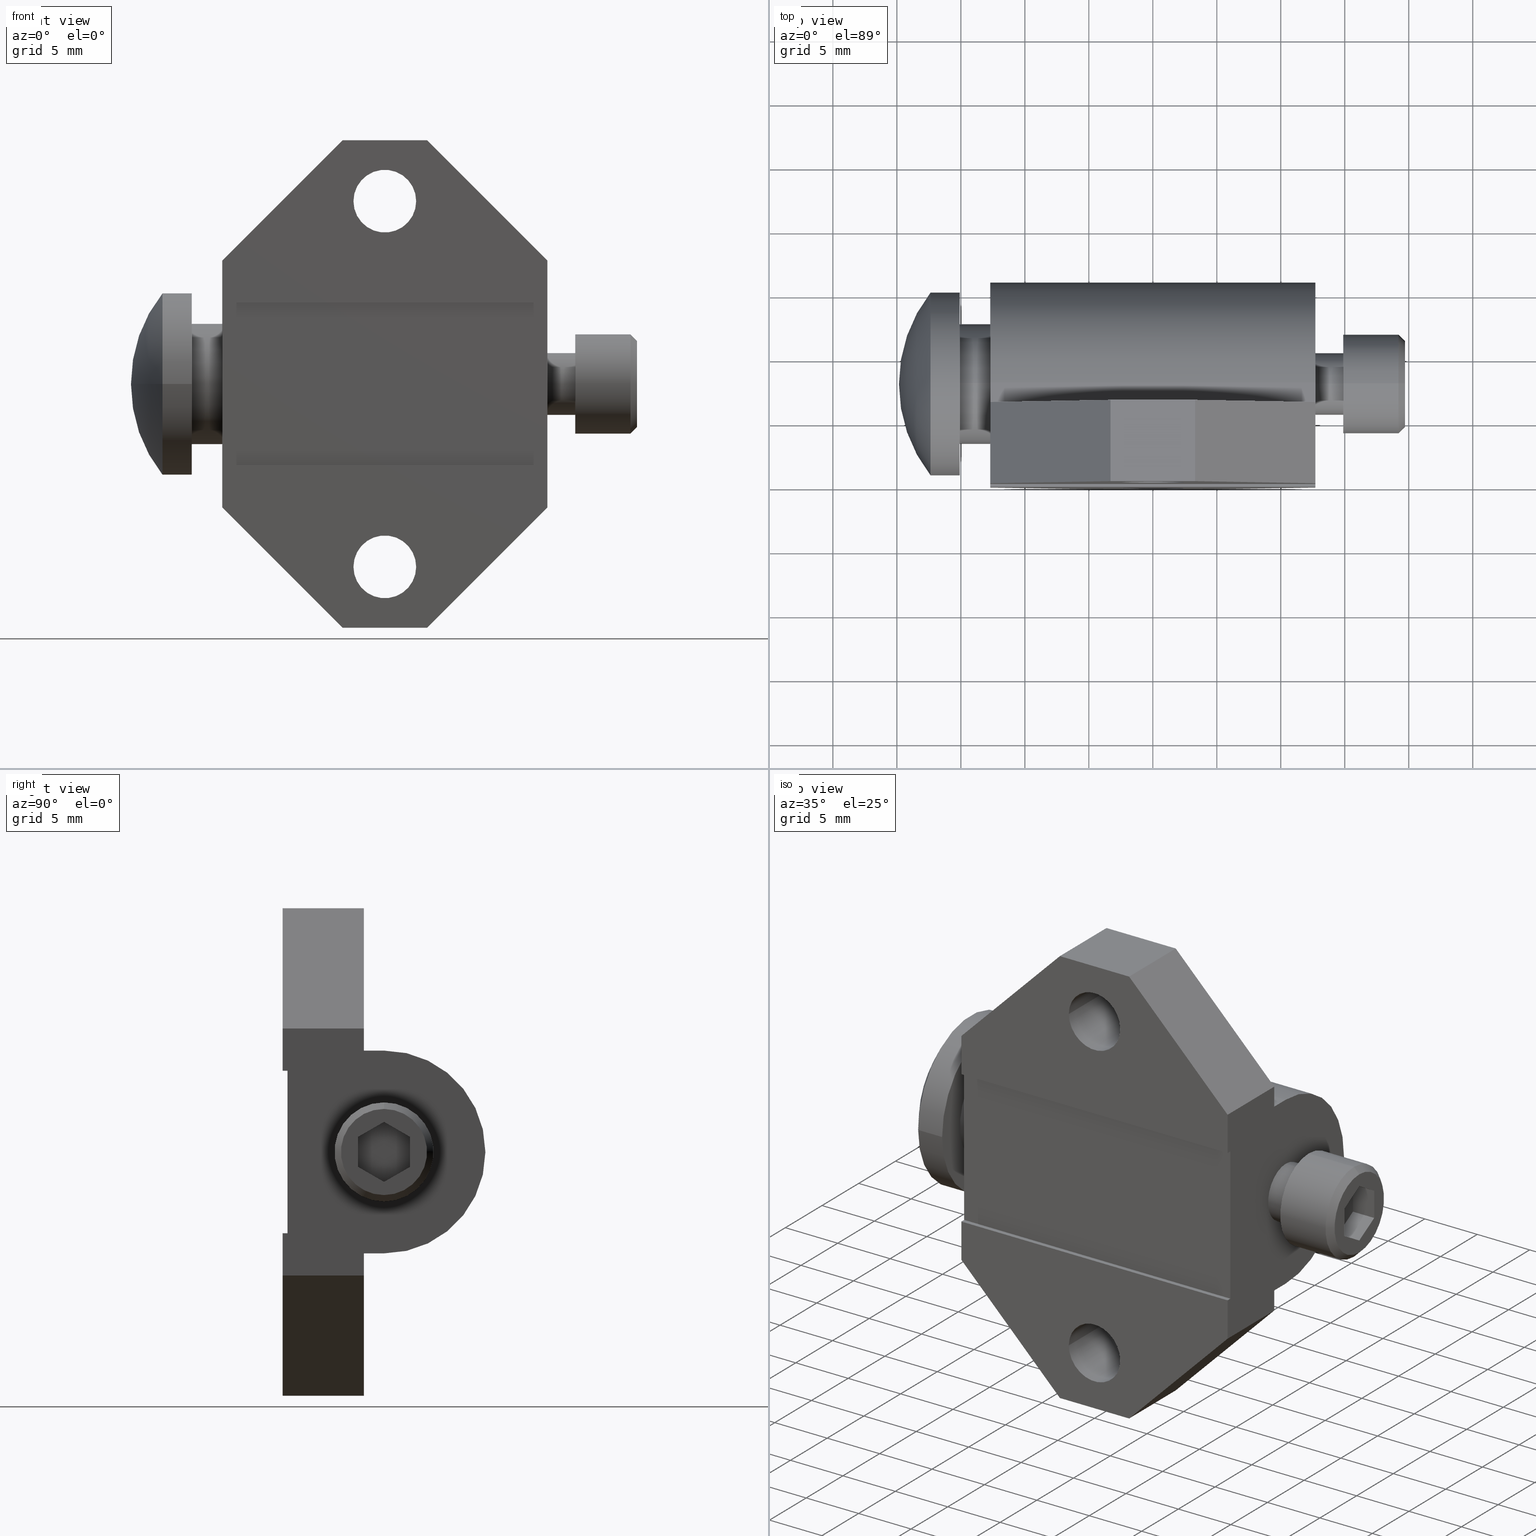
[diagram: canonical four-view strip — front | top / right | iso, engineering-drawing reading convention]
A machine part, canonical four-view strip (front | top / right | iso — engineering-drawing reading convention). The complete STEP part file that produces these views, byte-faithful:
ISO-10303-21;
HEADER;
FILE_DESCRIPTION((''),'2;1');
FILE_NAME('ILC66001400','2005-06-28T',('KR'),(''),
'PRO/ENGINEER BY PARAMETRIC TECHNOLOGY CORPORATION, 2004290',
'PRO/ENGINEER BY PARAMETRIC TECHNOLOGY CORPORATION, 2004290','');
FILE_SCHEMA(('AUTOMOTIVE_DESIGN_CC2 { 1 2 10303 214 -1 1 5 2 }'));
ENDSEC;
DATA;
#1=COLOUR_RGB('',0.E0,0.E0,4.7E-1);
#2=COLOUR_RGB('',0.E0,0.E0,6.E-1);
#3=COLOUR_RGB('',0.E0,0.E0,8.E-1);
#4=DRAUGHTING_PRE_DEFINED_COLOUR('blue');
#5=COLOUR_RGB('',0.E0,2.E-1,1.E0);
#6=COLOUR_RGB('',0.E0,3.3E-1,0.E0);
#7=COLOUR_RGB('',0.E0,3.3E-1,3.3E-1);
#8=COLOUR_RGB('',0.E0,4.E-1,0.E0);
#9=COLOUR_RGB('',0.E0,4.E-1,4.E-1);
#10=COLOUR_RGB('',0.E0,4.E-1,1.E0);
#11=COLOUR_RGB('',0.E0,5.3E-1,5.3E-1);
#12=COLOUR_RGB('',0.E0,6.E-1,0.E0);
#13=COLOUR_RGB('',0.E0,6.E-1,6.E-1);
#14=COLOUR_RGB('',0.E0,6.E-1,1.E0);
#15=COLOUR_RGB('',0.E0,8.E-1,0.E0);
#16=COLOUR_RGB('',0.E0,8.E-1,8.E-1);
#17=COLOUR_RGB('',0.E0,8.E-1,1.E0);
#18=COLOUR_RGB('',0.E0,9.3E-1,0.E0);
#19=COLOUR_RGB('',0.E0,9.3E-1,9.3E-1);
#20=DRAUGHTING_PRE_DEFINED_COLOUR('green');
#21=COLOUR_RGB('',0.E0,1.E0,2.E-1);
#22=COLOUR_RGB('',0.E0,1.E0,4.E-1);
#23=COLOUR_RGB('',0.E0,1.E0,6.E-1);
#24=COLOUR_RGB('',0.E0,1.E0,8.E-1);
#25=DRAUGHTING_PRE_DEFINED_COLOUR('cyan');
#26=COLOUR_RGB('',7.E-2,7.E-2,1.E0);
#27=COLOUR_RGB('',2.E-1,1.E0,0.E0);
#28=COLOUR_RGB('',2.E-1,1.E0,2.E-1);
#29=COLOUR_RGB('',2.E-1,1.E0,1.E0);
#30=COLOUR_RGB('',2.7E-1,0.E0,4.E-1);
#31=COLOUR_RGB('',2.7E-1,2.7E-1,0.E0);
#32=COLOUR_RGB('',2.7E-1,2.7E-1,1.E0);
#33=COLOUR_RGB('',3.3E-1,0.E0,0.E0);
#34=COLOUR_RGB('',3.3E-1,0.E0,3.3E-1);
#35=COLOUR_RGB('',3.3E-1,0.E0,5.3E-1);
#36=COLOUR_RGB('',4.E-1,0.E0,4.E-1);
#37=COLOUR_RGB('',4.E-1,0.E0,6.7E-1);
#38=COLOUR_RGB('',4.E-1,1.3E-1,0.E0);
#39=COLOUR_RGB('',4.E-1,4.E-1,0.E0);
#40=COLOUR_RGB('',4.E-1,4.E-1,1.E0);
#41=COLOUR_RGB('',4.E-1,1.E0,0.E0);
#42=COLOUR_RGB('',4.E-1,1.E0,4.E-1);
#43=COLOUR_RGB('',4.E-1,1.E0,1.E0);
#44=COLOUR_RGB('',4.7E-1,0.E0,0.E0);
#45=COLOUR_RGB('',4.7E-1,0.E0,8.E-1);
#46=COLOUR_RGB('',4.7E-1,0.E0,8.7E-1);
#47=COLOUR_RGB('',4.7E-1,2.E-1,7.E-2);
#48=COLOUR_RGB('',4.7E-1,4.7E-1,4.7E-1);
#49=COLOUR_RGB('',5.3E-1,0.E0,9.3E-1);
#50=COLOUR_RGB('',5.3E-1,2.7E-1,1.3E-1);
#51=COLOUR_RGB('',5.3E-1,5.3E-1,1.E0);
#52=COLOUR_RGB('',6.E-1,0.E0,6.E-1);
#53=COLOUR_RGB('',6.E-1,2.E-1,1.E0);
#54=COLOUR_RGB('',6.E-1,3.3E-1,2.E-1);
#55=COLOUR_RGB('',6.E-1,6.E-1,0.E0);
#56=COLOUR_RGB('',6.E-1,6.E-1,1.E0);
#57=COLOUR_RGB('',6.E-1,1.E0,6.E-1);
#58=COLOUR_RGB('',6.E-1,1.E0,1.E0);
#59=COLOUR_RGB('',6.7E-1,0.E0,0.E0);
#60=COLOUR_RGB('',6.7E-1,0.E0,5.3E-1);
#61=COLOUR_RGB('',6.7E-1,4.E-1,2.7E-1);
#62=COLOUR_RGB('',6.7E-1,4.E-1,1.E0);
#63=COLOUR_RGB('',6.7E-1,6.7E-1,1.E0);
#64=COLOUR_RGB('',6.7E-1,1.E0,0.E0);
#65=COLOUR_RGB('',7.3E-1,2.7E-1,1.E0);
#66=COLOUR_RGB('',7.3E-1,4.E-1,0.E0);
#67=COLOUR_RGB('',7.3E-1,4.7E-1,3.3E-1);
#68=COLOUR_RGB('',7.3E-1,7.3E-1,7.3E-1);
#69=COLOUR_RGB('',8.E-1,0.E0,8.E-1);
#70=COLOUR_RGB('',8.E-1,5.3E-1,4.E-1);
#71=COLOUR_RGB('',8.E-1,6.E-1,1.E0);
#72=COLOUR_RGB('',8.E-1,8.E-1,0.E0);
#73=COLOUR_RGB('',8.E-1,8.E-1,1.E0);
#74=COLOUR_RGB('',8.E-1,1.E0,8.E-1);
#75=COLOUR_RGB('',8.E-1,1.E0,1.E0);
#76=COLOUR_RGB('',8.7E-1,0.E0,0.E0);
#77=COLOUR_RGB('',8.7E-1,6.E-1,4.7E-1);
#78=COLOUR_RGB('',9.3E-1,0.E0,9.3E-1);
#79=COLOUR_RGB('',9.3E-1,6.7E-1,5.3E-1);
#80=COLOUR_RGB('',9.3E-1,8.E-1,1.E0);
#81=COLOUR_RGB('',9.3E-1,9.3E-1,0.E0);
#82=COLOUR_RGB('',9.3E-1,1.E0,9.3E-1);
#83=COLOUR_RGB('',9.3E-1,1.E0,1.E0);
#84=DRAUGHTING_PRE_DEFINED_COLOUR('red');
#85=COLOUR_RGB('',1.E0,0.E0,2.7E-1);
#86=COLOUR_RGB('',1.E0,0.E0,4.7E-1);
#87=DRAUGHTING_PRE_DEFINED_COLOUR('magenta');
#88=COLOUR_RGB('',1.E0,7.E-2,7.E-2);
#89=COLOUR_RGB('',1.E0,2.E-1,1.E0);
#90=COLOUR_RGB('',1.E0,2.7E-1,0.E0);
#91=COLOUR_RGB('',1.E0,2.7E-1,2.7E-1);
#92=COLOUR_RGB('',1.E0,4.E-1,1.E0);
#93=COLOUR_RGB('',1.E0,4.7E-1,0.E0);
#94=COLOUR_RGB('',1.E0,4.7E-1,4.7E-1);
#95=COLOUR_RGB('',1.E0,4.7E-1,5.3E-1);
#96=COLOUR_RGB('',1.E0,6.E-1,1.E0);
#97=COLOUR_RGB('',1.E0,6.7E-1,0.E0);
#98=COLOUR_RGB('',1.E0,6.7E-1,6.7E-1);
#99=COLOUR_RGB('',1.E0,7.3E-1,5.3E-1);
#100=COLOUR_RGB('',1.E0,7.3E-1,6.E-1);
#101=COLOUR_RGB('',1.E0,8.E-1,8.E-1);
#102=COLOUR_RGB('',1.E0,8.E-1,1.E0);
#103=COLOUR_RGB('',1.E0,8.7E-1,0.E0);
#104=COLOUR_RGB('',1.E0,9.3E-1,9.3E-1);
#105=COLOUR_RGB('',1.E0,9.3E-1,1.E0);
#106=DRAUGHTING_PRE_DEFINED_COLOUR('yellow');
#107=COLOUR_RGB('',1.E0,1.E0,1.3E-1);
#108=COLOUR_RGB('',1.E0,1.E0,3.3E-1);
#109=COLOUR_RGB('',1.E0,1.E0,5.3E-1);
#110=COLOUR_RGB('',1.E0,1.E0,7.3E-1);
#111=COLOUR_RGB('',1.E0,1.E0,9.3E-1);
#113=CARTESIAN_POINT('',(5.86E-1,3.12E-1,0.E0));
#114=DIRECTION('',(1.E0,0.E0,0.E0));
#115=DIRECTION('',(0.E0,0.E0,1.E0));
#116=AXIS2_PLACEMENT_3D('',#113,#114,#115);
#118=DRAUGHTING_PRE_DEFINED_CURVE_FONT('continuous');
#119=CURVE_STYLE('',#118,POSITIVE_LENGTH_MEASURE(2.E-2),#69);
#120=PRESENTATION_STYLE_ASSIGNMENT((#119));
#121=STYLED_ITEM('',(#120),#117);
#122=CARTESIAN_POINT('',(5.86E-1,3.12E-1,0.E0));
#123=DIRECTION('',(1.E0,0.E0,0.E0));
#124=DIRECTION('',(0.E0,0.E0,-1.E0));
#125=AXIS2_PLACEMENT_3D('',#122,#123,#124);
#127=CURVE_STYLE('',#118,POSITIVE_LENGTH_MEASURE(2.E-2),#69);
#128=PRESENTATION_STYLE_ASSIGNMENT((#127));
#129=STYLED_ITEM('',(#128),#126);
#130=CARTESIAN_POINT('',(5.86E-1,3.12E-1,0.E0));
#131=DIRECTION('',(1.E0,0.E0,0.E0));
#132=DIRECTION('',(0.E0,0.E0,-1.E0));
#133=AXIS2_PLACEMENT_3D('',#130,#131,#132);
#135=CURVE_STYLE('',#118,POSITIVE_LENGTH_MEASURE(2.E-2),#69);
#136=PRESENTATION_STYLE_ASSIGNMENT((#135));
#137=STYLED_ITEM('',(#136),#134);
#138=CARTESIAN_POINT('',(5.86E-1,3.12E-1,0.E0));
#139=DIRECTION('',(1.E0,0.E0,0.E0));
#140=DIRECTION('',(0.E0,0.E0,1.E0));
#141=AXIS2_PLACEMENT_3D('',#138,#139,#140);
#143=CURVE_STYLE('',#118,POSITIVE_LENGTH_MEASURE(2.E-2),#69);
#144=PRESENTATION_STYLE_ASSIGNMENT((#143));
#145=STYLED_ITEM('',(#144),#142);
#146=DIRECTION('',(1.E0,0.E0,0.E0));
#147=VECTOR('',#146,1.7E-1);
#148=CARTESIAN_POINT('',(5.86E-1,3.12E-1,1.525E-1));
#149=LINE('',#148,#147);
#150=CURVE_STYLE('',#118,POSITIVE_LENGTH_MEASURE(2.E-2),#69);
#151=PRESENTATION_STYLE_ASSIGNMENT((#150));
#152=STYLED_ITEM('',(#151),#149);
#153=DIRECTION('',(1.E0,0.E0,0.E0));
#154=VECTOR('',#153,1.7E-1);
#155=CARTESIAN_POINT('',(5.86E-1,3.12E-1,-1.525E-1));
#156=LINE('',#155,#154);
#157=CURVE_STYLE('',#118,POSITIVE_LENGTH_MEASURE(2.E-2),#69);
#158=PRESENTATION_STYLE_ASSIGNMENT((#157));
#159=STYLED_ITEM('',(#158),#156);
#160=CARTESIAN_POINT('',(7.76E-1,3.12E-1,0.E0));
#161=DIRECTION('',(1.E0,0.E0,0.E0));
#162=DIRECTION('',(0.E0,0.E0,-1.E0));
#163=AXIS2_PLACEMENT_3D('',#160,#161,#162);
#165=CURVE_STYLE('',#118,POSITIVE_LENGTH_MEASURE(2.E-2),#69);
#166=PRESENTATION_STYLE_ASSIGNMENT((#165));
#167=STYLED_ITEM('',(#166),#164);
#168=DIRECTION('',(-7.071067811865E-1,0.E0,7.071067811866E-1));
#169=VECTOR('',#168,2.828427124746E-2);
#170=CARTESIAN_POINT('',(7.76E-1,3.12E-1,1.325E-1));
#171=LINE('',#170,#169);
#172=CURVE_STYLE('',#118,POSITIVE_LENGTH_MEASURE(2.E-2),#69);
#173=PRESENTATION_STYLE_ASSIGNMENT((#172));
#174=STYLED_ITEM('',(#173),#171);
#175=CARTESIAN_POINT('',(7.56E-1,3.12E-1,0.E0));
#176=DIRECTION('',(1.E0,0.E0,0.E0));
#177=DIRECTION('',(0.E0,0.E0,-1.E0));
#178=AXIS2_PLACEMENT_3D('',#175,#176,#177);
#180=CURVE_STYLE('',#118,POSITIVE_LENGTH_MEASURE(2.E-2),#69);
#181=PRESENTATION_STYLE_ASSIGNMENT((#180));
#182=STYLED_ITEM('',(#181),#179);
#183=DIRECTION('',(-7.071067811865E-1,0.E0,-7.071067811866E-1));
#184=VECTOR('',#183,2.828427124746E-2);
#185=CARTESIAN_POINT('',(7.76E-1,3.12E-1,-1.325E-1));
#186=LINE('',#185,#184);
#187=CURVE_STYLE('',#118,POSITIVE_LENGTH_MEASURE(2.E-2),#69);
#188=PRESENTATION_STYLE_ASSIGNMENT((#187));
#189=STYLED_ITEM('',(#188),#186);
#190=DIRECTION('',(0.E0,0.E0,-1.E0));
#191=VECTOR('',#190,9.237604307034E-2);
#192=CARTESIAN_POINT('',(7.76E-1,2.32E-1,4.618802153517E-2));
#193=LINE('',#192,#191);
#194=CURVE_STYLE('',#118,POSITIVE_LENGTH_MEASURE(2.E-2),#69);
#195=PRESENTATION_STYLE_ASSIGNMENT((#194));
#196=STYLED_ITEM('',(#195),#193);
#197=DIRECTION('',(0.E0,8.660254037844E-1,-5.E-1));
#198=VECTOR('',#197,9.237604307034E-2);
#199=CARTESIAN_POINT('',(7.76E-1,2.32E-1,-4.618802153517E-2));
#200=LINE('',#199,#198);
#201=CURVE_STYLE('',#118,POSITIVE_LENGTH_MEASURE(2.E-2),#69);
#202=PRESENTATION_STYLE_ASSIGNMENT((#201));
#203=STYLED_ITEM('',(#202),#200);
#204=DIRECTION('',(0.E0,8.660254037844E-1,5.E-1));
#205=VECTOR('',#204,9.237604307034E-2);
#206=CARTESIAN_POINT('',(7.76E-1,3.12E-1,-9.237604307034E-2));
#207=LINE('',#206,#205);
#208=CURVE_STYLE('',#118,POSITIVE_LENGTH_MEASURE(2.E-2),#69);
#209=PRESENTATION_STYLE_ASSIGNMENT((#208));
#210=STYLED_ITEM('',(#209),#207);
#211=DIRECTION('',(0.E0,0.E0,1.E0));
#212=VECTOR('',#211,9.237604307034E-2);
#213=CARTESIAN_POINT('',(7.76E-1,3.92E-1,-4.618802153517E-2));
#214=LINE('',#213,#212);
#215=CURVE_STYLE('',#118,POSITIVE_LENGTH_MEASURE(2.E-2),#69);
#216=PRESENTATION_STYLE_ASSIGNMENT((#215));
#217=STYLED_ITEM('',(#216),#214);
#218=DIRECTION('',(0.E0,-8.660254037844E-1,5.E-1));
#219=VECTOR('',#218,9.237604307034E-2);
#220=CARTESIAN_POINT('',(7.76E-1,3.92E-1,4.618802153517E-2));
#221=LINE('',#220,#219);
#222=CURVE_STYLE('',#118,POSITIVE_LENGTH_MEASURE(2.E-2),#69);
#223=PRESENTATION_STYLE_ASSIGNMENT((#222));
#224=STYLED_ITEM('',(#223),#221);
#225=DIRECTION('',(0.E0,-8.660254037844E-1,-5.E-1));
#226=VECTOR('',#225,9.237604307034E-2);
#227=CARTESIAN_POINT('',(7.76E-1,3.12E-1,9.237604307034E-2));
#228=LINE('',#227,#226);
#229=CURVE_STYLE('',#118,POSITIVE_LENGTH_MEASURE(2.E-2),#69);
#230=PRESENTATION_STYLE_ASSIGNMENT((#229));
#231=STYLED_ITEM('',(#230),#228);
#232=CARTESIAN_POINT('',(7.76E-1,3.12E-1,0.E0));
#233=DIRECTION('',(1.E0,0.E0,0.E0));
#234=DIRECTION('',(0.E0,0.E0,1.E0));
#235=AXIS2_PLACEMENT_3D('',#232,#233,#234);
#237=CURVE_STYLE('',#118,POSITIVE_LENGTH_MEASURE(2.E-2),#69);
#238=PRESENTATION_STYLE_ASSIGNMENT((#237));
#239=STYLED_ITEM('',(#238),#236);
#240=CARTESIAN_POINT('',(7.56E-1,3.12E-1,0.E0));
#241=DIRECTION('',(1.E0,0.E0,0.E0));
#242=DIRECTION('',(0.E0,0.E0,1.E0));
#243=AXIS2_PLACEMENT_3D('',#240,#241,#242);
#245=CURVE_STYLE('',#118,POSITIVE_LENGTH_MEASURE(2.E-2),#69);
#246=PRESENTATION_STYLE_ASSIGNMENT((#245));
#247=STYLED_ITEM('',(#246),#244);
#248=DIRECTION('',(-1.E0,0.E0,0.E0));
#249=VECTOR('',#248,8.E-2);
#250=CARTESIAN_POINT('',(7.76E-1,2.32E-1,4.618802153517E-2));
#251=LINE('',#250,#249);
#252=CURVE_STYLE('',#118,POSITIVE_LENGTH_MEASURE(2.E-2),#69);
#253=PRESENTATION_STYLE_ASSIGNMENT((#252));
#254=STYLED_ITEM('',(#253),#251);
#255=DIRECTION('',(-1.E0,0.E0,0.E0));
#256=VECTOR('',#255,8.E-2);
#257=CARTESIAN_POINT('',(7.76E-1,3.12E-1,9.237604307034E-2));
#258=LINE('',#257,#256);
#259=CURVE_STYLE('',#118,POSITIVE_LENGTH_MEASURE(2.E-2),#69);
#260=PRESENTATION_STYLE_ASSIGNMENT((#259));
#261=STYLED_ITEM('',(#260),#258);
#262=DIRECTION('',(-1.E0,0.E0,0.E0));
#263=VECTOR('',#262,8.E-2);
#264=CARTESIAN_POINT('',(7.76E-1,3.92E-1,4.618802153517E-2));
#265=LINE('',#264,#263);
#266=CURVE_STYLE('',#118,POSITIVE_LENGTH_MEASURE(2.E-2),#69);
#267=PRESENTATION_STYLE_ASSIGNMENT((#266));
#268=STYLED_ITEM('',(#267),#265);
#269=DIRECTION('',(-1.E0,0.E0,0.E0));
#270=VECTOR('',#269,8.E-2);
#271=CARTESIAN_POINT('',(7.76E-1,3.92E-1,-4.618802153517E-2));
#272=LINE('',#271,#270);
#273=CURVE_STYLE('',#118,POSITIVE_LENGTH_MEASURE(2.E-2),#69);
#274=PRESENTATION_STYLE_ASSIGNMENT((#273));
#275=STYLED_ITEM('',(#274),#272);
#276=DIRECTION('',(-1.E0,0.E0,0.E0));
#277=VECTOR('',#276,8.E-2);
#278=CARTESIAN_POINT('',(7.76E-1,3.12E-1,-9.237604307034E-2));
#279=LINE('',#278,#277);
#280=CURVE_STYLE('',#118,POSITIVE_LENGTH_MEASURE(2.E-2),#69);
#281=PRESENTATION_STYLE_ASSIGNMENT((#280));
#282=STYLED_ITEM('',(#281),#279);
#283=DIRECTION('',(-1.E0,0.E0,0.E0));
#284=VECTOR('',#283,8.E-2);
#285=CARTESIAN_POINT('',(7.76E-1,2.32E-1,-4.618802153517E-2));
#286=LINE('',#285,#284);
#287=CURVE_STYLE('',#118,POSITIVE_LENGTH_MEASURE(2.E-2),#69);
#288=PRESENTATION_STYLE_ASSIGNMENT((#287));
#289=STYLED_ITEM('',(#288),#286);
#290=DIRECTION('',(0.E0,0.E0,-1.E0));
#291=VECTOR('',#290,9.237604307034E-2);
#292=CARTESIAN_POINT('',(6.96E-1,2.32E-1,4.618802153517E-2));
#293=LINE('',#292,#291);
#294=CURVE_STYLE('',#118,POSITIVE_LENGTH_MEASURE(2.E-2),#69);
#295=PRESENTATION_STYLE_ASSIGNMENT((#294));
#296=STYLED_ITEM('',(#295),#293);
#297=DIRECTION('',(0.E0,-8.660254037844E-1,-5.E-1));
#298=VECTOR('',#297,9.237604307034E-2);
#299=CARTESIAN_POINT('',(6.96E-1,3.12E-1,9.237604307034E-2));
#300=LINE('',#299,#298);
#301=CURVE_STYLE('',#118,POSITIVE_LENGTH_MEASURE(2.E-2),#69);
#302=PRESENTATION_STYLE_ASSIGNMENT((#301));
#303=STYLED_ITEM('',(#302),#300);
#304=DIRECTION('',(0.E0,-8.660254037844E-1,5.E-1));
#305=VECTOR('',#304,9.237604307034E-2);
#306=CARTESIAN_POINT('',(6.96E-1,3.92E-1,4.618802153517E-2));
#307=LINE('',#306,#305);
#308=CURVE_STYLE('',#118,POSITIVE_LENGTH_MEASURE(2.E-2),#69);
#309=PRESENTATION_STYLE_ASSIGNMENT((#308));
#310=STYLED_ITEM('',(#309),#307);
#311=DIRECTION('',(0.E0,0.E0,1.E0));
#312=VECTOR('',#311,9.237604307034E-2);
#313=CARTESIAN_POINT('',(6.96E-1,3.92E-1,-4.618802153517E-2));
#314=LINE('',#313,#312);
#315=CURVE_STYLE('',#118,POSITIVE_LENGTH_MEASURE(2.E-2),#69);
#316=PRESENTATION_STYLE_ASSIGNMENT((#315));
#317=STYLED_ITEM('',(#316),#314);
#318=DIRECTION('',(0.E0,8.660254037844E-1,5.E-1));
#319=VECTOR('',#318,9.237604307034E-2);
#320=CARTESIAN_POINT('',(6.96E-1,3.12E-1,-9.237604307034E-2));
#321=LINE('',#320,#319);
#322=CURVE_STYLE('',#118,POSITIVE_LENGTH_MEASURE(2.E-2),#69);
#323=PRESENTATION_STYLE_ASSIGNMENT((#322));
#324=STYLED_ITEM('',(#323),#321);
#325=DIRECTION('',(0.E0,8.660254037844E-1,-5.E-1));
#326=VECTOR('',#325,9.237604307034E-2);
#327=CARTESIAN_POINT('',(6.96E-1,2.32E-1,-4.618802153517E-2));
#328=LINE('',#327,#326);
#329=CURVE_STYLE('',#118,POSITIVE_LENGTH_MEASURE(2.E-2),#69);
#330=PRESENTATION_STYLE_ASSIGNMENT((#329));
#331=STYLED_ITEM('',(#330),#328);
#332=DIRECTION('',(1.E0,0.E0,0.E0));
#333=VECTOR('',#332,8.6E-2);
#334=CARTESIAN_POINT('',(5.E-1,3.12E-1,-9.5E-2));
#335=LINE('',#334,#333);
#336=CURVE_STYLE('',#118,POSITIVE_LENGTH_MEASURE(2.E-2),#69);
#337=PRESENTATION_STYLE_ASSIGNMENT((#336));
#338=STYLED_ITEM('',(#337),#335);
#339=CARTESIAN_POINT('',(5.E-1,3.12E-1,0.E0));
#340=DIRECTION('',(1.E0,0.E0,0.E0));
#341=DIRECTION('',(0.E0,0.E0,-1.E0));
#342=AXIS2_PLACEMENT_3D('',#339,#340,#341);
#344=CURVE_STYLE('',#118,POSITIVE_LENGTH_MEASURE(2.E-2),#69);
#345=PRESENTATION_STYLE_ASSIGNMENT((#344));
#346=STYLED_ITEM('',(#345),#343);
#347=CARTESIAN_POINT('',(5.E-1,3.12E-1,0.E0));
#348=DIRECTION('',(1.E0,0.E0,0.E0));
#349=DIRECTION('',(0.E0,0.E0,1.E0));
#350=AXIS2_PLACEMENT_3D('',#347,#348,#349);
#352=CURVE_STYLE('',#118,POSITIVE_LENGTH_MEASURE(2.E-2),#69);
#353=PRESENTATION_STYLE_ASSIGNMENT((#352));
#354=STYLED_ITEM('',(#353),#351);
#355=DIRECTION('',(0.E0,0.E0,1.E0));
#356=VECTOR('',#355,5.E-1);
#357=CARTESIAN_POINT('',(5.E-1,1.5E-2,-2.5E-1));
#358=LINE('',#357,#356);
#359=CURVE_STYLE('',#118,POSITIVE_LENGTH_MEASURE(2.E-2),#69);
#360=PRESENTATION_STYLE_ASSIGNMENT((#359));
#361=STYLED_ITEM('',(#360),#358);
#362=DIRECTION('',(0.E0,1.E0,0.E0));
#363=VECTOR('',#362,1.5E-2);
#364=CARTESIAN_POINT('',(5.E-1,0.E0,2.5E-1));
#365=LINE('',#364,#363);
#366=CURVE_STYLE('',#118,POSITIVE_LENGTH_MEASURE(2.E-2),#69);
#367=PRESENTATION_STYLE_ASSIGNMENT((#366));
#368=STYLED_ITEM('',(#367),#365);
#369=DIRECTION('',(0.E0,1.E0,0.E0));
#370=VECTOR('',#369,6.2E-2);
#371=CARTESIAN_POINT('',(5.E-1,2.5E-1,3.12E-1));
#372=LINE('',#371,#370);
#373=CURVE_STYLE('',#118,POSITIVE_LENGTH_MEASURE(2.E-2),#69);
#374=PRESENTATION_STYLE_ASSIGNMENT((#373));
#375=STYLED_ITEM('',(#374),#372);
#376=CARTESIAN_POINT('',(5.E-1,3.12E-1,0.E0));
#377=DIRECTION('',(-1.E0,0.E0,0.E0));
#378=DIRECTION('',(0.E0,0.E0,1.E0));
#379=AXIS2_PLACEMENT_3D('',#376,#377,#378);
#381=CURVE_STYLE('',#118,POSITIVE_LENGTH_MEASURE(2.E-2),#69);
#382=PRESENTATION_STYLE_ASSIGNMENT((#381));
#383=STYLED_ITEM('',(#382),#380);
#384=DIRECTION('',(0.E0,-1.E0,0.E0));
#385=VECTOR('',#384,6.2E-2);
#386=CARTESIAN_POINT('',(5.E-1,3.12E-1,-3.12E-1));
#387=LINE('',#386,#385);
#388=CURVE_STYLE('',#118,POSITIVE_LENGTH_MEASURE(2.E-2),#69);
#389=PRESENTATION_STYLE_ASSIGNMENT((#388));
#390=STYLED_ITEM('',(#389),#387);
#391=DIRECTION('',(0.E0,1.E0,0.E0));
#392=VECTOR('',#391,1.5E-2);
#393=CARTESIAN_POINT('',(5.E-1,0.E0,-2.5E-1));
#394=LINE('',#393,#392);
#395=CURVE_STYLE('',#118,POSITIVE_LENGTH_MEASURE(2.E-2),#69);
#396=PRESENTATION_STYLE_ASSIGNMENT((#395));
#397=STYLED_ITEM('',(#396),#394);
#398=DIRECTION('',(1.E0,0.E0,0.E0));
#399=VECTOR('',#398,8.6E-2);
#400=CARTESIAN_POINT('',(5.E-1,3.12E-1,9.5E-2));
#401=LINE('',#400,#399);
#402=CURVE_STYLE('',#118,POSITIVE_LENGTH_MEASURE(2.E-2),#69);
#403=PRESENTATION_STYLE_ASSIGNMENT((#402));
#404=STYLED_ITEM('',(#403),#401);
#405=DIRECTION('',(-1.E0,0.E0,0.E0));
#406=VECTOR('',#405,1.E0);
#407=CARTESIAN_POINT('',(5.E-1,1.5E-2,2.5E-1));
#408=LINE('',#407,#406);
#409=CURVE_STYLE('',#118,POSITIVE_LENGTH_MEASURE(2.E-2),#69);
#410=PRESENTATION_STYLE_ASSIGNMENT((#409));
#411=STYLED_ITEM('',(#410),#408);
#412=DIRECTION('',(1.E0,0.E0,0.E0));
#413=VECTOR('',#412,1.E0);
#414=CARTESIAN_POINT('',(-5.E-1,1.5E-2,-2.5E-1));
#415=LINE('',#414,#413);
#416=CURVE_STYLE('',#118,POSITIVE_LENGTH_MEASURE(2.E-2),#69);
#417=PRESENTATION_STYLE_ASSIGNMENT((#416));
#418=STYLED_ITEM('',(#417),#415);
#419=CARTESIAN_POINT('',(-5.E-1,3.12E-1,0.E0));
#420=DIRECTION('',(-1.E0,0.E0,0.E0));
#421=DIRECTION('',(0.E0,0.E0,1.E0));
#422=AXIS2_PLACEMENT_3D('',#419,#420,#421);
#424=CURVE_STYLE('',#118,POSITIVE_LENGTH_MEASURE(2.E-2),#69);
#425=PRESENTATION_STYLE_ASSIGNMENT((#424));
#426=STYLED_ITEM('',(#425),#423);
#427=CARTESIAN_POINT('',(-5.E-1,3.12E-1,0.E0));
#428=DIRECTION('',(-1.E0,0.E0,0.E0));
#429=DIRECTION('',(0.E0,0.E0,-1.E0));
#430=AXIS2_PLACEMENT_3D('',#427,#428,#429);
#432=CURVE_STYLE('',#118,POSITIVE_LENGTH_MEASURE(2.E-2),#69);
#433=PRESENTATION_STYLE_ASSIGNMENT((#432));
#434=STYLED_ITEM('',(#433),#431);
#435=DIRECTION('',(0.E0,0.E0,1.E0));
#436=VECTOR('',#435,5.E-1);
#437=CARTESIAN_POINT('',(-5.E-1,1.5E-2,-2.5E-1));
#438=LINE('',#437,#436);
#439=CURVE_STYLE('',#118,POSITIVE_LENGTH_MEASURE(2.E-2),#69);
#440=PRESENTATION_STYLE_ASSIGNMENT((#439));
#441=STYLED_ITEM('',(#440),#438);
#442=DIRECTION('',(0.E0,1.E0,0.E0));
#443=VECTOR('',#442,1.5E-2);
#444=CARTESIAN_POINT('',(-5.E-1,0.E0,-2.5E-1));
#445=LINE('',#444,#443);
#446=CURVE_STYLE('',#118,POSITIVE_LENGTH_MEASURE(2.E-2),#69);
#447=PRESENTATION_STYLE_ASSIGNMENT((#446));
#448=STYLED_ITEM('',(#447),#445);
#449=DIRECTION('',(0.E0,-1.E0,0.E0));
#450=VECTOR('',#449,6.2E-2);
#451=CARTESIAN_POINT('',(-5.E-1,3.12E-1,-3.12E-1));
#452=LINE('',#451,#450);
#453=CURVE_STYLE('',#118,POSITIVE_LENGTH_MEASURE(2.E-2),#69);
#454=PRESENTATION_STYLE_ASSIGNMENT((#453));
#455=STYLED_ITEM('',(#454),#452);
#456=CARTESIAN_POINT('',(-5.E-1,3.12E-1,0.E0));
#457=DIRECTION('',(-1.E0,0.E0,0.E0));
#458=DIRECTION('',(0.E0,0.E0,1.E0));
#459=AXIS2_PLACEMENT_3D('',#456,#457,#458);
#461=CURVE_STYLE('',#118,POSITIVE_LENGTH_MEASURE(2.E-2),#69);
#462=PRESENTATION_STYLE_ASSIGNMENT((#461));
#463=STYLED_ITEM('',(#462),#460);
#464=DIRECTION('',(0.E0,1.E0,0.E0));
#465=VECTOR('',#464,6.2E-2);
#466=CARTESIAN_POINT('',(-5.E-1,2.5E-1,3.12E-1));
#467=LINE('',#466,#465);
#468=CURVE_STYLE('',#118,POSITIVE_LENGTH_MEASURE(2.E-2),#69);
#469=PRESENTATION_STYLE_ASSIGNMENT((#468));
#470=STYLED_ITEM('',(#469),#467);
#471=DIRECTION('',(0.E0,1.E0,0.E0));
#472=VECTOR('',#471,1.5E-2);
#473=CARTESIAN_POINT('',(-5.E-1,0.E0,2.5E-1));
#474=LINE('',#473,#472);
#475=CURVE_STYLE('',#118,POSITIVE_LENGTH_MEASURE(2.E-2),#69);
#476=PRESENTATION_STYLE_ASSIGNMENT((#475));
#477=STYLED_ITEM('',(#476),#474);
#478=CARTESIAN_POINT('',(-5.94E-1,3.12E-1,0.E0));
#479=DIRECTION('',(-1.E0,0.E0,0.E0));
#480=DIRECTION('',(0.E0,0.E0,1.E0));
#481=AXIS2_PLACEMENT_3D('',#478,#479,#480);
#483=CURVE_STYLE('',#118,POSITIVE_LENGTH_MEASURE(2.E-2),#69);
#484=PRESENTATION_STYLE_ASSIGNMENT((#483));
#485=STYLED_ITEM('',(#484),#482);
#486=DIRECTION('',(-1.E0,0.E0,0.E0));
#487=VECTOR('',#486,9.4E-2);
#488=CARTESIAN_POINT('',(-5.E-1,3.12E-1,1.85E-1));
#489=LINE('',#488,#487);
#490=CURVE_STYLE('',#118,POSITIVE_LENGTH_MEASURE(2.E-2),#69);
#491=PRESENTATION_STYLE_ASSIGNMENT((#490));
#492=STYLED_ITEM('',(#491),#489);
#493=CARTESIAN_POINT('',(-5.94E-1,3.12E-1,0.E0));
#494=DIRECTION('',(1.E0,0.E0,0.E0));
#495=DIRECTION('',(0.E0,1.E0,0.E0));
#496=AXIS2_PLACEMENT_3D('',#493,#494,#495);
#498=CURVE_STYLE('',#118,POSITIVE_LENGTH_MEASURE(2.E-2),#69);
#499=PRESENTATION_STYLE_ASSIGNMENT((#498));
#500=STYLED_ITEM('',(#499),#497);
#501=DIRECTION('',(-1.E0,0.E0,0.E0));
#502=VECTOR('',#501,9.E-2);
#503=CARTESIAN_POINT('',(-5.94E-1,5.93E-1,0.E0));
#504=LINE('',#503,#502);
#505=CURVE_STYLE('',#118,POSITIVE_LENGTH_MEASURE(2.E-2),#69);
#506=PRESENTATION_STYLE_ASSIGNMENT((#505));
#507=STYLED_ITEM('',(#506),#504);
#508=DIRECTION('',(-1.E0,0.E0,0.E0));
#509=VECTOR('',#508,9.E-2);
#510=CARTESIAN_POINT('',(-5.94E-1,3.1E-2,0.E0));
#511=LINE('',#510,#509);
#512=CURVE_STYLE('',#118,POSITIVE_LENGTH_MEASURE(2.E-2),#69);
#513=PRESENTATION_STYLE_ASSIGNMENT((#512));
#514=STYLED_ITEM('',(#513),#511);
#515=CARTESIAN_POINT('',(-5.94E-1,3.12E-1,0.E0));
#516=DIRECTION('',(-1.E0,0.E0,0.E0));
#517=DIRECTION('',(0.E0,1.E0,0.E0));
#518=AXIS2_PLACEMENT_3D('',#515,#516,#517);
#520=CURVE_STYLE('',#118,POSITIVE_LENGTH_MEASURE(2.E-2),#69);
#521=PRESENTATION_STYLE_ASSIGNMENT((#520));
#522=STYLED_ITEM('',(#521),#519);
#523=CARTESIAN_POINT('',(-3.254845360825E-1,3.12E-1,0.E0));
#524=DIRECTION('',(0.E0,0.E0,1.E0));
#525=DIRECTION('',(-7.870544302365E-1,6.168835577685E-1,0.E0));
#526=AXIS2_PLACEMENT_3D('',#523,#524,#525);
#528=CURVE_STYLE('',#118,POSITIVE_LENGTH_MEASURE(2.E-2),#69);
#529=PRESENTATION_STYLE_ASSIGNMENT((#528));
#530=STYLED_ITEM('',(#529),#527);
#531=CARTESIAN_POINT('',(-3.254845360825E-1,3.12E-1,0.E0));
#532=DIRECTION('',(0.E0,0.E0,-1.E0));
#533=DIRECTION('',(-7.870544302365E-1,-6.168835577685E-1,0.E0));
#534=AXIS2_PLACEMENT_3D('',#531,#532,#533);
#536=CURVE_STYLE('',#118,POSITIVE_LENGTH_MEASURE(2.E-2),#69);
#537=PRESENTATION_STYLE_ASSIGNMENT((#536));
#538=STYLED_ITEM('',(#537),#535);
#539=CARTESIAN_POINT('',(-6.84E-1,3.12E-1,0.E0));
#540=DIRECTION('',(-1.E0,0.E0,0.E0));
#541=DIRECTION('',(0.E0,1.E0,0.E0));
#542=AXIS2_PLACEMENT_3D('',#539,#540,#541);
#544=CURVE_STYLE('',#118,POSITIVE_LENGTH_MEASURE(2.E-2),#69);
#545=PRESENTATION_STYLE_ASSIGNMENT((#544));
#546=STYLED_ITEM('',(#545),#543);
#547=CARTESIAN_POINT('',(-6.84E-1,3.12E-1,0.E0));
#548=DIRECTION('',(1.E0,0.E0,0.E0));
#549=DIRECTION('',(0.E0,1.E0,0.E0));
#550=AXIS2_PLACEMENT_3D('',#547,#548,#549);
#552=CURVE_STYLE('',#118,POSITIVE_LENGTH_MEASURE(2.E-2),#69);
#553=PRESENTATION_STYLE_ASSIGNMENT((#552));
#554=STYLED_ITEM('',(#553),#551);
#555=CARTESIAN_POINT('',(-5.94E-1,3.12E-1,0.E0));
#556=DIRECTION('',(-1.E0,0.E0,0.E0));
#557=DIRECTION('',(0.E0,0.E0,-1.E0));
#558=AXIS2_PLACEMENT_3D('',#555,#556,#557);
#560=CURVE_STYLE('',#118,POSITIVE_LENGTH_MEASURE(2.E-2),#69);
#561=PRESENTATION_STYLE_ASSIGNMENT((#560));
#562=STYLED_ITEM('',(#561),#559);
#563=DIRECTION('',(-1.E0,0.E0,0.E0));
#564=VECTOR('',#563,9.4E-2);
#565=CARTESIAN_POINT('',(-5.E-1,3.12E-1,-1.85E-1));
#566=LINE('',#565,#564);
#567=CURVE_STYLE('',#118,POSITIVE_LENGTH_MEASURE(2.E-2),#69);
#568=PRESENTATION_STYLE_ASSIGNMENT((#567));
#569=STYLED_ITEM('',(#568),#566);
#570=DIRECTION('',(1.E0,0.E0,0.E0));
#571=VECTOR('',#570,1.E0);
#572=CARTESIAN_POINT('',(-5.E-1,0.E0,-2.5E-1));
#573=LINE('',#572,#571);
#574=CURVE_STYLE('',#118,POSITIVE_LENGTH_MEASURE(2.E-2),#69);
#575=PRESENTATION_STYLE_ASSIGNMENT((#574));
#576=STYLED_ITEM('',(#575),#573);
#577=DIRECTION('',(0.E0,0.E0,-1.E0));
#578=VECTOR('',#577,1.3E-1);
#579=CARTESIAN_POINT('',(5.E-1,0.E0,-2.5E-1));
#580=LINE('',#579,#578);
#581=CURVE_STYLE('',#118,POSITIVE_LENGTH_MEASURE(2.E-2),#69);
#582=PRESENTATION_STYLE_ASSIGNMENT((#581));
#583=STYLED_ITEM('',(#582),#580);
#584=DIRECTION('',(-1.E0,0.E0,0.E0));
#585=VECTOR('',#584,2.6E-1);
#586=CARTESIAN_POINT('',(1.3E-1,0.E0,-7.5E-1));
#587=LINE('',#586,#585);
#588=CURVE_STYLE('',#118,POSITIVE_LENGTH_MEASURE(2.E-2),#69);
#589=PRESENTATION_STYLE_ASSIGNMENT((#588));
#590=STYLED_ITEM('',(#589),#587);
#591=DIRECTION('',(0.E0,0.E0,1.E0));
#592=VECTOR('',#591,1.3E-1);
#593=CARTESIAN_POINT('',(-5.E-1,0.E0,-3.8E-1));
#594=LINE('',#593,#592);
#595=CURVE_STYLE('',#118,POSITIVE_LENGTH_MEASURE(2.E-2),#69);
#596=PRESENTATION_STYLE_ASSIGNMENT((#595));
#597=STYLED_ITEM('',(#596),#594);
#598=DIRECTION('',(1.E0,0.E0,0.E0));
#599=VECTOR('',#598,1.E0);
#600=CARTESIAN_POINT('',(-5.E-1,0.E0,2.5E-1));
#601=LINE('',#600,#599);
#602=CURVE_STYLE('',#118,POSITIVE_LENGTH_MEASURE(2.E-2),#69);
#603=PRESENTATION_STYLE_ASSIGNMENT((#602));
#604=STYLED_ITEM('',(#603),#601);
#605=DIRECTION('',(0.E0,0.E0,1.E0));
#606=VECTOR('',#605,1.3E-1);
#607=CARTESIAN_POINT('',(-5.E-1,0.E0,2.5E-1));
#608=LINE('',#607,#606);
#609=CURVE_STYLE('',#118,POSITIVE_LENGTH_MEASURE(2.E-2),#69);
#610=PRESENTATION_STYLE_ASSIGNMENT((#609));
#611=STYLED_ITEM('',(#610),#608);
#612=DIRECTION('',(1.E0,0.E0,0.E0));
#613=VECTOR('',#612,2.6E-1);
#614=CARTESIAN_POINT('',(-1.3E-1,0.E0,7.5E-1));
#615=LINE('',#614,#613);
#616=CURVE_STYLE('',#118,POSITIVE_LENGTH_MEASURE(2.E-2),#69);
#617=PRESENTATION_STYLE_ASSIGNMENT((#616));
#618=STYLED_ITEM('',(#617),#615);
#619=DIRECTION('',(0.E0,0.E0,-1.E0));
#620=VECTOR('',#619,1.3E-1);
#621=CARTESIAN_POINT('',(5.E-1,0.E0,3.8E-1));
#622=LINE('',#621,#620);
#623=CURVE_STYLE('',#118,POSITIVE_LENGTH_MEASURE(2.E-2),#69);
#624=PRESENTATION_STYLE_ASSIGNMENT((#623));
#625=STYLED_ITEM('',(#624),#622);
#626=CARTESIAN_POINT('',(0.E0,0.E0,5.625E-1));
#627=DIRECTION('',(0.E0,-1.E0,0.E0));
#628=DIRECTION('',(1.E0,0.E0,0.E0));
#629=AXIS2_PLACEMENT_3D('',#626,#627,#628);
#631=CURVE_STYLE('',#118,POSITIVE_LENGTH_MEASURE(2.E-2),#69);
#632=PRESENTATION_STYLE_ASSIGNMENT((#631));
#633=STYLED_ITEM('',(#632),#630);
#634=CARTESIAN_POINT('',(0.E0,0.E0,5.625E-1));
#635=DIRECTION('',(0.E0,-1.E0,0.E0));
#636=DIRECTION('',(-1.E0,0.E0,0.E0));
#637=AXIS2_PLACEMENT_3D('',#634,#635,#636);
#639=CURVE_STYLE('',#118,POSITIVE_LENGTH_MEASURE(2.E-2),#69);
#640=PRESENTATION_STYLE_ASSIGNMENT((#639));
#641=STYLED_ITEM('',(#640),#638);
#642=CARTESIAN_POINT('',(0.E0,0.E0,-5.625E-1));
#643=DIRECTION('',(0.E0,-1.E0,0.E0));
#644=DIRECTION('',(1.E0,0.E0,0.E0));
#645=AXIS2_PLACEMENT_3D('',#642,#643,#644);
#647=CURVE_STYLE('',#118,POSITIVE_LENGTH_MEASURE(2.E-2),#69);
#648=PRESENTATION_STYLE_ASSIGNMENT((#647));
#649=STYLED_ITEM('',(#648),#646);
#650=CARTESIAN_POINT('',(0.E0,0.E0,-5.625E-1));
#651=DIRECTION('',(0.E0,-1.E0,0.E0));
#652=DIRECTION('',(-1.E0,0.E0,0.E0));
#653=AXIS2_PLACEMENT_3D('',#650,#651,#652);
#655=CURVE_STYLE('',#118,POSITIVE_LENGTH_MEASURE(2.E-2),#69);
#656=PRESENTATION_STYLE_ASSIGNMENT((#655));
#657=STYLED_ITEM('',(#656),#654);
#658=DIRECTION('',(0.E0,1.E0,0.E0));
#659=VECTOR('',#658,2.5E-1);
#660=CARTESIAN_POINT('',(1.3E-1,0.E0,-7.5E-1));
#661=LINE('',#660,#659);
#662=CURVE_STYLE('',#118,POSITIVE_LENGTH_MEASURE(2.E-2),#69);
#663=PRESENTATION_STYLE_ASSIGNMENT((#662));
#664=STYLED_ITEM('',(#663),#661);
#665=DIRECTION('',(7.071067811865E-1,0.E0,7.071067811865E-1));
#666=VECTOR('',#665,5.232590180780E-1);
#667=CARTESIAN_POINT('',(1.3E-1,0.E0,-7.5E-1));
#668=LINE('',#667,#666);
#669=CURVE_STYLE('',#118,POSITIVE_LENGTH_MEASURE(2.E-2),#69);
#670=PRESENTATION_STYLE_ASSIGNMENT((#669));
#671=STYLED_ITEM('',(#670),#668);
#672=DIRECTION('',(0.E0,1.E0,0.E0));
#673=VECTOR('',#672,2.5E-1);
#674=CARTESIAN_POINT('',(5.E-1,0.E0,-3.8E-1));
#675=LINE('',#674,#673);
#676=CURVE_STYLE('',#118,POSITIVE_LENGTH_MEASURE(2.E-2),#69);
#677=PRESENTATION_STYLE_ASSIGNMENT((#676));
#678=STYLED_ITEM('',(#677),#675);
#679=DIRECTION('',(7.071067811865E-1,0.E0,7.071067811865E-1));
#680=VECTOR('',#679,5.232590180780E-1);
#681=CARTESIAN_POINT('',(1.3E-1,2.5E-1,-7.5E-1));
#682=LINE('',#681,#680);
#683=CURVE_STYLE('',#118,POSITIVE_LENGTH_MEASURE(2.E-2),#69);
#684=PRESENTATION_STYLE_ASSIGNMENT((#683));
#685=STYLED_ITEM('',(#684),#682);
#686=DIRECTION('',(1.E0,0.E0,0.E0));
#687=VECTOR('',#686,1.E0);
#688=CARTESIAN_POINT('',(-5.E-1,2.5E-1,-3.12E-1));
#689=LINE('',#688,#687);
#690=CURVE_STYLE('',#118,POSITIVE_LENGTH_MEASURE(2.E-2),#69);
#691=PRESENTATION_STYLE_ASSIGNMENT((#690));
#692=STYLED_ITEM('',(#691),#689);
#693=DIRECTION('',(0.E0,0.E0,1.E0));
#694=VECTOR('',#693,6.8E-2);
#695=CARTESIAN_POINT('',(-5.E-1,2.5E-1,-3.8E-1));
#696=LINE('',#695,#694);
#697=CURVE_STYLE('',#118,POSITIVE_LENGTH_MEASURE(2.E-2),#69);
#698=PRESENTATION_STYLE_ASSIGNMENT((#697));
#699=STYLED_ITEM('',(#698),#696);
#700=DIRECTION('',(-1.E0,0.E0,0.E0));
#701=VECTOR('',#700,2.6E-1);
#702=CARTESIAN_POINT('',(1.3E-1,2.5E-1,-7.5E-1));
#703=LINE('',#702,#701);
#704=CURVE_STYLE('',#118,POSITIVE_LENGTH_MEASURE(2.E-2),#69);
#705=PRESENTATION_STYLE_ASSIGNMENT((#704));
#706=STYLED_ITEM('',(#705),#703);
#707=DIRECTION('',(0.E0,0.E0,-1.E0));
#708=VECTOR('',#707,6.8E-2);
#709=CARTESIAN_POINT('',(5.E-1,2.5E-1,-3.12E-1));
#710=LINE('',#709,#708);
#711=CURVE_STYLE('',#118,POSITIVE_LENGTH_MEASURE(2.E-2),#69);
#712=PRESENTATION_STYLE_ASSIGNMENT((#711));
#713=STYLED_ITEM('',(#712),#710);
#714=DIRECTION('',(1.E0,0.E0,0.E0));
#715=VECTOR('',#714,1.E0);
#716=CARTESIAN_POINT('',(-5.E-1,2.5E-1,3.12E-1));
#717=LINE('',#716,#715);
#718=CURVE_STYLE('',#118,POSITIVE_LENGTH_MEASURE(2.E-2),#69);
#719=PRESENTATION_STYLE_ASSIGNMENT((#718));
#720=STYLED_ITEM('',(#719),#717);
#721=DIRECTION('',(0.E0,0.E0,-1.E0));
#722=VECTOR('',#721,6.8E-2);
#723=CARTESIAN_POINT('',(5.E-1,2.5E-1,3.8E-1));
#724=LINE('',#723,#722);
#725=CURVE_STYLE('',#118,POSITIVE_LENGTH_MEASURE(2.E-2),#69);
#726=PRESENTATION_STYLE_ASSIGNMENT((#725));
#727=STYLED_ITEM('',(#726),#724);
#728=DIRECTION('',(1.E0,0.E0,0.E0));
#729=VECTOR('',#728,2.6E-1);
#730=CARTESIAN_POINT('',(-1.3E-1,2.5E-1,7.5E-1));
#731=LINE('',#730,#729);
#732=CURVE_STYLE('',#118,POSITIVE_LENGTH_MEASURE(2.E-2),#69);
#733=PRESENTATION_STYLE_ASSIGNMENT((#732));
#734=STYLED_ITEM('',(#733),#731);
#735=DIRECTION('',(0.E0,0.E0,1.E0));
#736=VECTOR('',#735,6.8E-2);
#737=CARTESIAN_POINT('',(-5.E-1,2.5E-1,3.12E-1));
#738=LINE('',#737,#736);
#739=CURVE_STYLE('',#118,POSITIVE_LENGTH_MEASURE(2.E-2),#69);
#740=PRESENTATION_STYLE_ASSIGNMENT((#739));
#741=STYLED_ITEM('',(#740),#738);
#742=CARTESIAN_POINT('',(0.E0,2.5E-1,5.625E-1));
#743=DIRECTION('',(0.E0,-1.E0,0.E0));
#744=DIRECTION('',(1.E0,0.E0,0.E0));
#745=AXIS2_PLACEMENT_3D('',#742,#743,#744);
#747=CURVE_STYLE('',#118,POSITIVE_LENGTH_MEASURE(2.E-2),#69);
#748=PRESENTATION_STYLE_ASSIGNMENT((#747));
#749=STYLED_ITEM('',(#748),#746);
#750=CARTESIAN_POINT('',(0.E0,2.5E-1,5.625E-1));
#751=DIRECTION('',(0.E0,-1.E0,0.E0));
#752=DIRECTION('',(-1.E0,0.E0,0.E0));
#753=AXIS2_PLACEMENT_3D('',#750,#751,#752);
#755=CURVE_STYLE('',#118,POSITIVE_LENGTH_MEASURE(2.E-2),#69);
#756=PRESENTATION_STYLE_ASSIGNMENT((#755));
#757=STYLED_ITEM('',(#756),#754);
#758=CARTESIAN_POINT('',(0.E0,2.5E-1,-5.625E-1));
#759=DIRECTION('',(0.E0,-1.E0,0.E0));
#760=DIRECTION('',(1.E0,0.E0,0.E0));
#761=AXIS2_PLACEMENT_3D('',#758,#759,#760);
#763=CURVE_STYLE('',#118,POSITIVE_LENGTH_MEASURE(2.E-2),#69);
#764=PRESENTATION_STYLE_ASSIGNMENT((#763));
#765=STYLED_ITEM('',(#764),#762);
#766=CARTESIAN_POINT('',(0.E0,2.5E-1,-5.625E-1));
#767=DIRECTION('',(0.E0,-1.E0,0.E0));
#768=DIRECTION('',(-1.E0,0.E0,0.E0));
#769=AXIS2_PLACEMENT_3D('',#766,#767,#768);
#771=CURVE_STYLE('',#118,POSITIVE_LENGTH_MEASURE(2.E-2),#69);
#772=PRESENTATION_STYLE_ASSIGNMENT((#771));
#773=STYLED_ITEM('',(#772),#770);
#774=DIRECTION('',(-1.E0,0.E0,0.E0));
#775=VECTOR('',#774,1.E0);
#776=CARTESIAN_POINT('',(5.E-1,3.12E-1,-3.12E-1));
#777=LINE('',#776,#775);
#778=CURVE_STYLE('',#118,POSITIVE_LENGTH_MEASURE(2.E-2),#69);
#779=PRESENTATION_STYLE_ASSIGNMENT((#778));
#780=STYLED_ITEM('',(#779),#777);
#781=DIRECTION('',(-1.E0,0.E0,0.E0));
#782=VECTOR('',#781,1.E0);
#783=CARTESIAN_POINT('',(5.E-1,3.12E-1,3.12E-1));
#784=LINE('',#783,#782);
#785=CURVE_STYLE('',#118,POSITIVE_LENGTH_MEASURE(2.E-2),#69);
#786=PRESENTATION_STYLE_ASSIGNMENT((#785));
#787=STYLED_ITEM('',(#786),#784);
#788=DIRECTION('',(0.E0,1.E0,0.E0));
#789=VECTOR('',#788,2.5E-1);
#790=CARTESIAN_POINT('',(-5.E-1,0.E0,-3.8E-1));
#791=LINE('',#790,#789);
#792=CURVE_STYLE('',#118,POSITIVE_LENGTH_MEASURE(2.E-2),#69);
#793=PRESENTATION_STYLE_ASSIGNMENT((#792));
#794=STYLED_ITEM('',(#793),#791);
#795=DIRECTION('',(7.071067811865E-1,0.E0,-7.071067811865E-1));
#796=VECTOR('',#795,5.232590180780E-1);
#797=CARTESIAN_POINT('',(-5.E-1,0.E0,-3.8E-1));
#798=LINE('',#797,#796);
#799=CURVE_STYLE('',#118,POSITIVE_LENGTH_MEASURE(2.E-2),#69);
#800=PRESENTATION_STYLE_ASSIGNMENT((#799));
#801=STYLED_ITEM('',(#800),#798);
#802=DIRECTION('',(0.E0,1.E0,0.E0));
#803=VECTOR('',#802,2.5E-1);
#804=CARTESIAN_POINT('',(-1.3E-1,0.E0,-7.5E-1));
#805=LINE('',#804,#803);
#806=CURVE_STYLE('',#118,POSITIVE_LENGTH_MEASURE(2.E-2),#69);
#807=PRESENTATION_STYLE_ASSIGNMENT((#806));
#808=STYLED_ITEM('',(#807),#805);
#809=DIRECTION('',(7.071067811865E-1,0.E0,-7.071067811865E-1));
#810=VECTOR('',#809,5.232590180780E-1);
#811=CARTESIAN_POINT('',(-5.E-1,2.5E-1,-3.8E-1));
#812=LINE('',#811,#810);
#813=CURVE_STYLE('',#118,POSITIVE_LENGTH_MEASURE(2.E-2),#69);
#814=PRESENTATION_STYLE_ASSIGNMENT((#813));
#815=STYLED_ITEM('',(#814),#812);
#816=DIRECTION('',(0.E0,1.E0,0.E0));
#817=VECTOR('',#816,2.5E-1);
#818=CARTESIAN_POINT('',(5.E-1,0.E0,3.8E-1));
#819=LINE('',#818,#817);
#820=CURVE_STYLE('',#118,POSITIVE_LENGTH_MEASURE(2.E-2),#69);
#821=PRESENTATION_STYLE_ASSIGNMENT((#820));
#822=STYLED_ITEM('',(#821),#819);
#823=DIRECTION('',(-7.071067811865E-1,0.E0,7.071067811865E-1));
#824=VECTOR('',#823,5.232590180780E-1);
#825=CARTESIAN_POINT('',(5.E-1,0.E0,3.8E-1));
#826=LINE('',#825,#824);
#827=CURVE_STYLE('',#118,POSITIVE_LENGTH_MEASURE(2.E-2),#69);
#828=PRESENTATION_STYLE_ASSIGNMENT((#827));
#829=STYLED_ITEM('',(#828),#826);
#830=DIRECTION('',(0.E0,1.E0,0.E0));
#831=VECTOR('',#830,2.5E-1);
#832=CARTESIAN_POINT('',(1.3E-1,0.E0,7.5E-1));
#833=LINE('',#832,#831);
#834=CURVE_STYLE('',#118,POSITIVE_LENGTH_MEASURE(2.E-2),#69);
#835=PRESENTATION_STYLE_ASSIGNMENT((#834));
#836=STYLED_ITEM('',(#835),#833);
#837=DIRECTION('',(-7.071067811865E-1,0.E0,7.071067811865E-1));
#838=VECTOR('',#837,5.232590180780E-1);
#839=CARTESIAN_POINT('',(5.E-1,2.5E-1,3.8E-1));
#840=LINE('',#839,#838);
#841=CURVE_STYLE('',#118,POSITIVE_LENGTH_MEASURE(2.E-2),#69);
#842=PRESENTATION_STYLE_ASSIGNMENT((#841));
#843=STYLED_ITEM('',(#842),#840);
#844=DIRECTION('',(0.E0,1.E0,0.E0));
#845=VECTOR('',#844,2.5E-1);
#846=CARTESIAN_POINT('',(-1.3E-1,0.E0,7.5E-1));
#847=LINE('',#846,#845);
#848=CURVE_STYLE('',#118,POSITIVE_LENGTH_MEASURE(2.E-2),#69);
#849=PRESENTATION_STYLE_ASSIGNMENT((#848));
#850=STYLED_ITEM('',(#849),#847);
#851=DIRECTION('',(-7.071067811865E-1,0.E0,-7.071067811865E-1));
#852=VECTOR('',#851,5.232590180780E-1);
#853=CARTESIAN_POINT('',(-1.3E-1,0.E0,7.5E-1));
#854=LINE('',#853,#852);
#855=CURVE_STYLE('',#118,POSITIVE_LENGTH_MEASURE(2.E-2),#69);
#856=PRESENTATION_STYLE_ASSIGNMENT((#855));
#857=STYLED_ITEM('',(#856),#854);
#858=DIRECTION('',(0.E0,1.E0,0.E0));
#859=VECTOR('',#858,2.5E-1);
#860=CARTESIAN_POINT('',(-5.E-1,0.E0,3.8E-1));
#861=LINE('',#860,#859);
#862=CURVE_STYLE('',#118,POSITIVE_LENGTH_MEASURE(2.E-2),#69);
#863=PRESENTATION_STYLE_ASSIGNMENT((#862));
#864=STYLED_ITEM('',(#863),#861);
#865=DIRECTION('',(-7.071067811865E-1,0.E0,-7.071067811865E-1));
#866=VECTOR('',#865,5.232590180780E-1);
#867=CARTESIAN_POINT('',(-1.3E-1,2.5E-1,7.5E-1));
#868=LINE('',#867,#866);
#869=CURVE_STYLE('',#118,POSITIVE_LENGTH_MEASURE(2.E-2),#69);
#870=PRESENTATION_STYLE_ASSIGNMENT((#869));
#871=STYLED_ITEM('',(#870),#868);
#872=DIRECTION('',(0.E0,-1.E0,0.E0));
#873=VECTOR('',#872,2.5E-1);
#874=CARTESIAN_POINT('',(9.65E-2,2.5E-1,5.625E-1));
#875=LINE('',#874,#873);
#876=CURVE_STYLE('',#118,POSITIVE_LENGTH_MEASURE(2.E-2),#69);
#877=PRESENTATION_STYLE_ASSIGNMENT((#876));
#878=STYLED_ITEM('',(#877),#875);
#879=DIRECTION('',(0.E0,-1.E0,0.E0));
#880=VECTOR('',#879,2.5E-1);
#881=CARTESIAN_POINT('',(-9.65E-2,2.5E-1,5.625E-1));
#882=LINE('',#881,#880);
#883=CURVE_STYLE('',#118,POSITIVE_LENGTH_MEASURE(2.E-2),#69);
#884=PRESENTATION_STYLE_ASSIGNMENT((#883));
#885=STYLED_ITEM('',(#884),#882);
#886=DIRECTION('',(0.E0,-1.E0,0.E0));
#887=VECTOR('',#886,2.5E-1);
#888=CARTESIAN_POINT('',(9.65E-2,2.5E-1,-5.625E-1));
#889=LINE('',#888,#887);
#890=CURVE_STYLE('',#118,POSITIVE_LENGTH_MEASURE(2.E-2),#69);
#891=PRESENTATION_STYLE_ASSIGNMENT((#890));
#892=STYLED_ITEM('',(#891),#889);
#893=DIRECTION('',(0.E0,-1.E0,0.E0));
#894=VECTOR('',#893,2.5E-1);
#895=CARTESIAN_POINT('',(-9.65E-2,2.5E-1,-5.625E-1));
#896=LINE('',#895,#894);
#897=CURVE_STYLE('',#118,POSITIVE_LENGTH_MEASURE(2.E-2),#69);
#898=PRESENTATION_STYLE_ASSIGNMENT((#897));
#899=STYLED_ITEM('',(#898),#896);
#900=CARTESIAN_POINT('',(5.E-1,3.12E-1,3.12E-1));
#901=CARTESIAN_POINT('',(5.E-1,3.12E-1,-3.12E-1));
#902=VERTEX_POINT('',#900);
#903=VERTEX_POINT('',#901);
#904=CARTESIAN_POINT('',(-5.E-1,3.12E-1,3.12E-1));
#905=CARTESIAN_POINT('',(-5.E-1,3.12E-1,-3.12E-1));
#906=VERTEX_POINT('',#904);
#907=VERTEX_POINT('',#905);
#908=CARTESIAN_POINT('',(-5.E-1,2.5E-1,-3.12E-1));
#909=CARTESIAN_POINT('',(5.E-1,2.5E-1,-3.12E-1));
#910=VERTEX_POINT('',#908);
#911=VERTEX_POINT('',#909);
#912=CARTESIAN_POINT('',(-5.E-1,2.5E-1,3.12E-1));
#913=CARTESIAN_POINT('',(5.E-1,2.5E-1,3.12E-1));
#914=VERTEX_POINT('',#912);
#915=VERTEX_POINT('',#913);
#916=CARTESIAN_POINT('',(5.86E-1,3.12E-1,1.525E-1));
#917=CARTESIAN_POINT('',(5.86E-1,3.12E-1,-1.525E-1));
#918=VERTEX_POINT('',#916);
#919=VERTEX_POINT('',#917);
#920=CARTESIAN_POINT('',(6.96E-1,2.32E-1,4.618802153517E-2));
#921=CARTESIAN_POINT('',(6.96E-1,2.32E-1,-4.618802153517E-2));
#922=VERTEX_POINT('',#920);
#923=VERTEX_POINT('',#921);
#924=CARTESIAN_POINT('',(6.96E-1,3.12E-1,-9.237604307034E-2));
#925=VERTEX_POINT('',#924);
#926=CARTESIAN_POINT('',(6.96E-1,3.92E-1,-4.618802153517E-2));
#927=VERTEX_POINT('',#926);
#928=CARTESIAN_POINT('',(6.96E-1,3.92E-1,4.618802153517E-2));
#929=VERTEX_POINT('',#928);
#930=CARTESIAN_POINT('',(6.96E-1,3.12E-1,9.237604307034E-2));
#931=VERTEX_POINT('',#930);
#932=CARTESIAN_POINT('',(7.76E-1,2.32E-1,4.618802153517E-2));
#933=CARTESIAN_POINT('',(7.76E-1,2.32E-1,-4.618802153517E-2));
#934=VERTEX_POINT('',#932);
#935=VERTEX_POINT('',#933);
#936=CARTESIAN_POINT('',(7.76E-1,3.12E-1,-9.237604307034E-2));
#937=VERTEX_POINT('',#936);
#938=CARTESIAN_POINT('',(7.76E-1,3.92E-1,-4.618802153517E-2));
#939=VERTEX_POINT('',#938);
#940=CARTESIAN_POINT('',(7.76E-1,3.92E-1,4.618802153517E-2));
#941=VERTEX_POINT('',#940);
#942=CARTESIAN_POINT('',(7.76E-1,3.12E-1,9.237604307034E-2));
#943=VERTEX_POINT('',#942);
#944=CARTESIAN_POINT('',(-5.E-1,3.12E-1,1.85E-1));
#945=CARTESIAN_POINT('',(-5.E-1,3.12E-1,-1.85E-1));
#946=VERTEX_POINT('',#944);
#947=VERTEX_POINT('',#945);
#948=CARTESIAN_POINT('',(-5.E-1,0.E0,-2.5E-1));
#949=CARTESIAN_POINT('',(5.E-1,0.E0,-2.5E-1));
#950=VERTEX_POINT('',#948);
#951=VERTEX_POINT('',#949);
#952=CARTESIAN_POINT('',(-5.E-1,0.E0,2.5E-1));
#953=CARTESIAN_POINT('',(5.E-1,0.E0,2.5E-1));
#954=VERTEX_POINT('',#952);
#955=VERTEX_POINT('',#953);
#956=CARTESIAN_POINT('',(-5.E-1,1.5E-2,-2.5E-1));
#957=CARTESIAN_POINT('',(-5.E-1,1.5E-2,2.5E-1));
#958=VERTEX_POINT('',#956);
#959=VERTEX_POINT('',#957);
#960=CARTESIAN_POINT('',(5.E-1,1.5E-2,-2.5E-1));
#961=CARTESIAN_POINT('',(5.E-1,1.5E-2,2.5E-1));
#962=VERTEX_POINT('',#960);
#963=VERTEX_POINT('',#961);
#964=CARTESIAN_POINT('',(5.E-1,0.E0,3.8E-1));
#965=CARTESIAN_POINT('',(5.E-1,2.5E-1,3.8E-1));
#966=VERTEX_POINT('',#964);
#967=VERTEX_POINT('',#965);
#968=CARTESIAN_POINT('',(1.3E-1,0.E0,7.5E-1));
#969=CARTESIAN_POINT('',(1.3E-1,2.5E-1,7.5E-1));
#970=VERTEX_POINT('',#968);
#971=VERTEX_POINT('',#969);
#972=CARTESIAN_POINT('',(-1.3E-1,0.E0,7.5E-1));
#973=CARTESIAN_POINT('',(-1.3E-1,2.5E-1,7.5E-1));
#974=VERTEX_POINT('',#972);
#975=VERTEX_POINT('',#973);
#976=CARTESIAN_POINT('',(-5.E-1,0.E0,3.8E-1));
#977=CARTESIAN_POINT('',(-5.E-1,2.5E-1,3.8E-1));
#978=VERTEX_POINT('',#976);
#979=VERTEX_POINT('',#977);
#980=CARTESIAN_POINT('',(1.3E-1,0.E0,-7.5E-1));
#981=CARTESIAN_POINT('',(1.3E-1,2.5E-1,-7.5E-1));
#982=VERTEX_POINT('',#980);
#983=VERTEX_POINT('',#981);
#984=CARTESIAN_POINT('',(5.E-1,0.E0,-3.8E-1));
#985=CARTESIAN_POINT('',(5.E-1,2.5E-1,-3.8E-1));
#986=VERTEX_POINT('',#984);
#987=VERTEX_POINT('',#985);
#988=CARTESIAN_POINT('',(-5.E-1,0.E0,-3.8E-1));
#989=CARTESIAN_POINT('',(-5.E-1,2.5E-1,-3.8E-1));
#990=VERTEX_POINT('',#988);
#991=VERTEX_POINT('',#989);
#992=CARTESIAN_POINT('',(-1.3E-1,0.E0,-7.5E-1));
#993=CARTESIAN_POINT('',(-1.3E-1,2.5E-1,-7.5E-1));
#994=VERTEX_POINT('',#992);
#995=VERTEX_POINT('',#993);
#996=CARTESIAN_POINT('',(-5.94E-1,5.93E-1,0.E0));
#997=CARTESIAN_POINT('',(-6.84E-1,5.93E-1,0.E0));
#998=VERTEX_POINT('',#996);
#999=VERTEX_POINT('',#997);
#1000=CARTESIAN_POINT('',(-7.81E-1,3.12E-1,0.E0));
#1001=VERTEX_POINT('',#1000);
#1002=CARTESIAN_POINT('',(-5.94E-1,3.1E-2,0.E0));
#1003=CARTESIAN_POINT('',(-6.84E-1,3.1E-2,0.E0));
#1004=VERTEX_POINT('',#1002);
#1005=VERTEX_POINT('',#1003);
#1006=CARTESIAN_POINT('',(-5.94E-1,3.12E-1,1.85E-1));
#1007=CARTESIAN_POINT('',(-5.94E-1,3.12E-1,-1.85E-1));
#1008=VERTEX_POINT('',#1006);
#1009=VERTEX_POINT('',#1007);
#1010=CARTESIAN_POINT('',(7.76E-1,3.12E-1,1.325E-1));
#1011=CARTESIAN_POINT('',(7.76E-1,3.12E-1,-1.325E-1));
#1012=VERTEX_POINT('',#1010);
#1013=VERTEX_POINT('',#1011);
#1014=CARTESIAN_POINT('',(7.56E-1,3.12E-1,1.525E-1));
#1015=CARTESIAN_POINT('',(7.56E-1,3.12E-1,-1.525E-1));
#1016=VERTEX_POINT('',#1014);
#1017=VERTEX_POINT('',#1015);
#1018=CARTESIAN_POINT('',(9.65E-2,0.E0,5.625E-1));
#1019=CARTESIAN_POINT('',(-9.65E-2,0.E0,5.625E-1));
#1020=VERTEX_POINT('',#1018);
#1021=VERTEX_POINT('',#1019);
#1022=CARTESIAN_POINT('',(9.65E-2,2.5E-1,5.625E-1));
#1023=CARTESIAN_POINT('',(-9.65E-2,2.5E-1,5.625E-1));
#1024=VERTEX_POINT('',#1022);
#1025=VERTEX_POINT('',#1023);
#1026=CARTESIAN_POINT('',(9.65E-2,0.E0,-5.625E-1));
#1027=CARTESIAN_POINT('',(-9.65E-2,0.E0,-5.625E-1));
#1028=VERTEX_POINT('',#1026);
#1029=VERTEX_POINT('',#1027);
#1030=CARTESIAN_POINT('',(9.65E-2,2.5E-1,-5.625E-1));
#1031=CARTESIAN_POINT('',(-9.65E-2,2.5E-1,-5.625E-1));
#1032=VERTEX_POINT('',#1030);
#1033=VERTEX_POINT('',#1031);
#1034=CARTESIAN_POINT('',(5.E-1,3.12E-1,-9.5E-2));
#1035=CARTESIAN_POINT('',(5.E-1,3.12E-1,9.5E-2));
#1036=VERTEX_POINT('',#1034);
#1037=VERTEX_POINT('',#1035);
#1038=CARTESIAN_POINT('',(5.86E-1,3.12E-1,-9.5E-2));
#1039=VERTEX_POINT('',#1038);
#1040=CARTESIAN_POINT('',(5.86E-1,3.12E-1,9.5E-2));
#1041=VERTEX_POINT('',#1040);
#1042=CARTESIAN_POINT('',(5.86E-1,0.E0,0.E0));
#1043=DIRECTION('',(1.E0,0.E0,0.E0));
#1044=DIRECTION('',(0.E0,0.E0,1.E0));
#1045=AXIS2_PLACEMENT_3D('',#1042,#1043,#1044);
#1046=PLANE('',#1045);
#1048=ORIENTED_EDGE('',*,*,#1047,.T.);
#1050=ORIENTED_EDGE('',*,*,#1049,.T.);
#1051=EDGE_LOOP('',(#1048,#1050));
#1052=FACE_OUTER_BOUND('',#1051,.F.);
#1054=ORIENTED_EDGE('',*,*,#1053,.F.);
#1056=ORIENTED_EDGE('',*,*,#1055,.F.);
#1057=EDGE_LOOP('',(#1054,#1056));
#1058=FACE_BOUND('',#1057,.F.);
#1059=ADVANCED_FACE('',(#1052,#1058),#1046,.F.);
#1060=CARTESIAN_POINT('',(5.86E-1,3.12E-1,0.E0));
#1061=DIRECTION('',(1.E0,0.E0,0.E0));
#1062=DIRECTION('',(0.E0,0.E0,1.E0));
#1063=AXIS2_PLACEMENT_3D('',#1060,#1061,#1062);
#1064=CYLINDRICAL_SURFACE('',#1063,1.525E-1);
#1065=ORIENTED_EDGE('',*,*,#1047,.F.);
#1067=ORIENTED_EDGE('',*,*,#1066,.T.);
#1069=ORIENTED_EDGE('',*,*,#1068,.T.);
#1071=ORIENTED_EDGE('',*,*,#1070,.F.);
#1072=EDGE_LOOP('',(#1065,#1067,#1069,#1071));
#1073=FACE_OUTER_BOUND('',#1072,.F.);
#1074=ADVANCED_FACE('',(#1073),#1064,.T.);
#1075=CARTESIAN_POINT('',(5.86E-1,3.12E-1,0.E0));
#1076=DIRECTION('',(1.E0,0.E0,0.E0));
#1077=DIRECTION('',(0.E0,0.E0,1.E0));
#1078=AXIS2_PLACEMENT_3D('',#1075,#1076,#1077);
#1079=CYLINDRICAL_SURFACE('',#1078,1.525E-1);
#1080=ORIENTED_EDGE('',*,*,#1049,.F.);
#1081=ORIENTED_EDGE('',*,*,#1070,.T.);
#1083=ORIENTED_EDGE('',*,*,#1082,.T.);
#1084=ORIENTED_EDGE('',*,*,#1066,.F.);
#1085=EDGE_LOOP('',(#1080,#1081,#1083,#1084));
#1086=FACE_OUTER_BOUND('',#1085,.F.);
#1087=ADVANCED_FACE('',(#1086),#1079,.T.);
#1088=CARTESIAN_POINT('',(7.66E-1,3.12E-1,0.E0));
#1089=DIRECTION('',(-1.E0,0.E0,0.E0));
#1090=DIRECTION('',(0.E0,0.E0,-1.E0));
#1091=AXIS2_PLACEMENT_3D('',#1088,#1089,#1090);
#1092=CONICAL_SURFACE('',#1091,1.425E-1,4.5E1);
#1094=ORIENTED_EDGE('',*,*,#1093,.T.);
#1096=ORIENTED_EDGE('',*,*,#1095,.T.);
#1097=ORIENTED_EDGE('',*,*,#1082,.F.);
#1099=ORIENTED_EDGE('',*,*,#1098,.F.);
#1100=EDGE_LOOP('',(#1094,#1096,#1097,#1099));
#1101=FACE_OUTER_BOUND('',#1100,.F.);
#1102=ADVANCED_FACE('',(#1101),#1092,.T.);
#1103=CARTESIAN_POINT('',(7.76E-1,0.E0,0.E0));
#1104=DIRECTION('',(1.E0,0.E0,0.E0));
#1105=DIRECTION('',(0.E0,0.E0,1.E0));
#1106=AXIS2_PLACEMENT_3D('',#1103,#1104,#1105);
#1107=PLANE('',#1106);
#1109=ORIENTED_EDGE('',*,*,#1108,.F.);
#1110=ORIENTED_EDGE('',*,*,#1093,.F.);
#1111=EDGE_LOOP('',(#1109,#1110));
#1112=FACE_OUTER_BOUND('',#1111,.F.);
#1114=ORIENTED_EDGE('',*,*,#1113,.T.);
#1116=ORIENTED_EDGE('',*,*,#1115,.T.);
#1118=ORIENTED_EDGE('',*,*,#1117,.T.);
#1120=ORIENTED_EDGE('',*,*,#1119,.T.);
#1122=ORIENTED_EDGE('',*,*,#1121,.T.);
#1124=ORIENTED_EDGE('',*,*,#1123,.T.);
#1125=EDGE_LOOP('',(#1114,#1116,#1118,#1120,#1122,#1124));
#1126=FACE_BOUND('',#1125,.F.);
#1127=ADVANCED_FACE('',(#1112,#1126),#1107,.T.);
#1128=CARTESIAN_POINT('',(7.66E-1,3.12E-1,0.E0));
#1129=DIRECTION('',(-1.E0,0.E0,0.E0));
#1130=DIRECTION('',(0.E0,0.E0,-1.E0));
#1131=AXIS2_PLACEMENT_3D('',#1128,#1129,#1130);
#1132=CONICAL_SURFACE('',#1131,1.425E-1,4.5E1);
#1133=ORIENTED_EDGE('',*,*,#1108,.T.);
#1134=ORIENTED_EDGE('',*,*,#1098,.T.);
#1135=ORIENTED_EDGE('',*,*,#1068,.F.);
#1136=ORIENTED_EDGE('',*,*,#1095,.F.);
#1137=EDGE_LOOP('',(#1133,#1134,#1135,#1136));
#1138=FACE_OUTER_BOUND('',#1137,.F.);
#1139=ADVANCED_FACE('',(#1138),#1132,.T.);
#1140=CARTESIAN_POINT('',(7.76E-1,2.32E-1,4.618802153517E-2));
#1141=DIRECTION('',(0.E0,-1.E0,0.E0));
#1142=DIRECTION('',(0.E0,0.E0,-1.E0));
#1143=AXIS2_PLACEMENT_3D('',#1140,#1141,#1142);
#1144=PLANE('',#1143);
#1145=ORIENTED_EDGE('',*,*,#1113,.F.);
#1147=ORIENTED_EDGE('',*,*,#1146,.T.);
#1149=ORIENTED_EDGE('',*,*,#1148,.T.);
#1151=ORIENTED_EDGE('',*,*,#1150,.F.);
#1152=EDGE_LOOP('',(#1145,#1147,#1149,#1151));
#1153=FACE_OUTER_BOUND('',#1152,.F.);
#1154=ADVANCED_FACE('',(#1153),#1144,.F.);
#1155=CARTESIAN_POINT('',(7.76E-1,3.12E-1,9.237604307034E-2));
#1156=DIRECTION('',(0.E0,-5.E-1,8.660254037844E-1));
#1157=DIRECTION('',(0.E0,-8.660254037844E-1,-5.E-1));
#1158=AXIS2_PLACEMENT_3D('',#1155,#1156,#1157);
#1159=PLANE('',#1158);
#1160=ORIENTED_EDGE('',*,*,#1123,.F.);
#1162=ORIENTED_EDGE('',*,*,#1161,.T.);
#1164=ORIENTED_EDGE('',*,*,#1163,.T.);
#1165=ORIENTED_EDGE('',*,*,#1146,.F.);
#1166=EDGE_LOOP('',(#1160,#1162,#1164,#1165));
#1167=FACE_OUTER_BOUND('',#1166,.F.);
#1168=ADVANCED_FACE('',(#1167),#1159,.F.);
#1169=CARTESIAN_POINT('',(7.76E-1,3.92E-1,4.618802153517E-2));
#1170=DIRECTION('',(0.E0,5.E-1,8.660254037844E-1));
#1171=DIRECTION('',(0.E0,-8.660254037844E-1,5.E-1));
#1172=AXIS2_PLACEMENT_3D('',#1169,#1170,#1171);
#1173=PLANE('',#1172);
#1174=ORIENTED_EDGE('',*,*,#1121,.F.);
#1176=ORIENTED_EDGE('',*,*,#1175,.T.);
#1178=ORIENTED_EDGE('',*,*,#1177,.T.);
#1179=ORIENTED_EDGE('',*,*,#1161,.F.);
#1180=EDGE_LOOP('',(#1174,#1176,#1178,#1179));
#1181=FACE_OUTER_BOUND('',#1180,.F.);
#1182=ADVANCED_FACE('',(#1181),#1173,.F.);
#1183=CARTESIAN_POINT('',(7.76E-1,3.92E-1,-4.618802153517E-2));
#1184=DIRECTION('',(0.E0,1.E0,0.E0));
#1185=DIRECTION('',(0.E0,0.E0,1.E0));
#1186=AXIS2_PLACEMENT_3D('',#1183,#1184,#1185);
#1187=PLANE('',#1186);
#1188=ORIENTED_EDGE('',*,*,#1119,.F.);
#1190=ORIENTED_EDGE('',*,*,#1189,.T.);
#1192=ORIENTED_EDGE('',*,*,#1191,.T.);
#1193=ORIENTED_EDGE('',*,*,#1175,.F.);
#1194=EDGE_LOOP('',(#1188,#1190,#1192,#1193));
#1195=FACE_OUTER_BOUND('',#1194,.F.);
#1196=ADVANCED_FACE('',(#1195),#1187,.F.);
#1197=CARTESIAN_POINT('',(7.76E-1,3.12E-1,-9.237604307034E-2));
#1198=DIRECTION('',(0.E0,5.E-1,-8.660254037844E-1));
#1199=DIRECTION('',(0.E0,8.660254037844E-1,5.E-1));
#1200=AXIS2_PLACEMENT_3D('',#1197,#1198,#1199);
#1201=PLANE('',#1200);
#1202=ORIENTED_EDGE('',*,*,#1117,.F.);
#1204=ORIENTED_EDGE('',*,*,#1203,.T.);
#1206=ORIENTED_EDGE('',*,*,#1205,.T.);
#1207=ORIENTED_EDGE('',*,*,#1189,.F.);
#1208=EDGE_LOOP('',(#1202,#1204,#1206,#1207));
#1209=FACE_OUTER_BOUND('',#1208,.F.);
#1210=ADVANCED_FACE('',(#1209),#1201,.F.);
#1211=CARTESIAN_POINT('',(7.76E-1,2.32E-1,-4.618802153517E-2));
#1212=DIRECTION('',(0.E0,-5.E-1,-8.660254037844E-1));
#1213=DIRECTION('',(0.E0,8.660254037844E-1,-5.E-1));
#1214=AXIS2_PLACEMENT_3D('',#1211,#1212,#1213);
#1215=PLANE('',#1214);
#1216=ORIENTED_EDGE('',*,*,#1115,.F.);
#1217=ORIENTED_EDGE('',*,*,#1150,.T.);
#1219=ORIENTED_EDGE('',*,*,#1218,.T.);
#1220=ORIENTED_EDGE('',*,*,#1203,.F.);
#1221=EDGE_LOOP('',(#1216,#1217,#1219,#1220));
#1222=FACE_OUTER_BOUND('',#1221,.F.);
#1223=ADVANCED_FACE('',(#1222),#1215,.F.);
#1224=CARTESIAN_POINT('',(6.96E-1,0.E0,0.E0));
#1225=DIRECTION('',(1.E0,0.E0,0.E0));
#1226=DIRECTION('',(0.E0,0.E0,-1.E0));
#1227=AXIS2_PLACEMENT_3D('',#1224,#1225,#1226);
#1228=PLANE('',#1227);
#1229=ORIENTED_EDGE('',*,*,#1148,.F.);
#1230=ORIENTED_EDGE('',*,*,#1163,.F.);
#1231=ORIENTED_EDGE('',*,*,#1177,.F.);
#1232=ORIENTED_EDGE('',*,*,#1191,.F.);
#1233=ORIENTED_EDGE('',*,*,#1205,.F.);
#1234=ORIENTED_EDGE('',*,*,#1218,.F.);
#1235=EDGE_LOOP('',(#1229,#1230,#1231,#1232,#1233,#1234));
#1236=FACE_OUTER_BOUND('',#1235,.F.);
#1237=ADVANCED_FACE('',(#1236),#1228,.T.);
#1238=CARTESIAN_POINT('',(0.E0,3.12E-1,0.E0));
#1239=DIRECTION('',(1.E0,0.E0,0.E0));
#1240=DIRECTION('',(0.E0,0.E0,-1.E0));
#1241=AXIS2_PLACEMENT_3D('',#1238,#1239,#1240);
#1242=CYLINDRICAL_SURFACE('',#1241,9.5E-2);
#1244=ORIENTED_EDGE('',*,*,#1243,.F.);
#1246=ORIENTED_EDGE('',*,*,#1245,.T.);
#1247=ORIENTED_EDGE('',*,*,#1053,.T.);
#1249=ORIENTED_EDGE('',*,*,#1248,.F.);
#1250=EDGE_LOOP('',(#1244,#1246,#1247,#1249));
#1251=FACE_OUTER_BOUND('',#1250,.F.);
#1252=ADVANCED_FACE('',(#1251),#1242,.T.);
#1253=CARTESIAN_POINT('',(5.E-1,0.E0,7.5E-1));
#1254=DIRECTION('',(1.E0,0.E0,0.E0));
#1255=DIRECTION('',(0.E0,0.E0,-1.E0));
#1256=AXIS2_PLACEMENT_3D('',#1253,#1254,#1255);
#1257=PLANE('',#1256);
#1259=ORIENTED_EDGE('',*,*,#1258,.T.);
#1261=ORIENTED_EDGE('',*,*,#1260,.F.);
#1263=ORIENTED_EDGE('',*,*,#1262,.F.);
#1265=ORIENTED_EDGE('',*,*,#1264,.T.);
#1267=ORIENTED_EDGE('',*,*,#1266,.T.);
#1269=ORIENTED_EDGE('',*,*,#1268,.T.);
#1271=ORIENTED_EDGE('',*,*,#1270,.T.);
#1273=ORIENTED_EDGE('',*,*,#1272,.T.);
#1275=ORIENTED_EDGE('',*,*,#1274,.T.);
#1277=ORIENTED_EDGE('',*,*,#1276,.F.);
#1279=ORIENTED_EDGE('',*,*,#1278,.F.);
#1281=ORIENTED_EDGE('',*,*,#1280,.T.);
#1282=EDGE_LOOP('',(#1259,#1261,#1263,#1265,#1267,#1269,#1271,#1273,#1275,#1277,
#1279,#1281));
#1283=FACE_OUTER_BOUND('',#1282,.F.);
#1284=ORIENTED_EDGE('',*,*,#1243,.T.);
#1286=ORIENTED_EDGE('',*,*,#1285,.T.);
#1287=EDGE_LOOP('',(#1284,#1286));
#1288=FACE_BOUND('',#1287,.F.);
#1289=ADVANCED_FACE('',(#1283,#1288),#1257,.T.);
#1290=CARTESIAN_POINT('',(0.E0,3.12E-1,0.E0));
#1291=DIRECTION('',(1.E0,0.E0,0.E0));
#1292=DIRECTION('',(0.E0,0.E0,-1.E0));
#1293=AXIS2_PLACEMENT_3D('',#1290,#1291,#1292);
#1294=CYLINDRICAL_SURFACE('',#1293,9.5E-2);
#1295=ORIENTED_EDGE('',*,*,#1285,.F.);
#1296=ORIENTED_EDGE('',*,*,#1248,.T.);
#1297=ORIENTED_EDGE('',*,*,#1055,.T.);
#1298=ORIENTED_EDGE('',*,*,#1245,.F.);
#1299=EDGE_LOOP('',(#1295,#1296,#1297,#1298));
#1300=FACE_OUTER_BOUND('',#1299,.F.);
#1301=ADVANCED_FACE('',(#1300),#1294,.T.);
#1302=CARTESIAN_POINT('',(0.E0,1.5E-2,0.E0));
#1303=DIRECTION('',(0.E0,-1.E0,0.E0));
#1304=DIRECTION('',(1.E0,0.E0,0.E0));
#1305=AXIS2_PLACEMENT_3D('',#1302,#1303,#1304);
#1306=PLANE('',#1305);
#1308=ORIENTED_EDGE('',*,*,#1307,.T.);
#1310=ORIENTED_EDGE('',*,*,#1309,.F.);
#1311=ORIENTED_EDGE('',*,*,#1258,.F.);
#1313=ORIENTED_EDGE('',*,*,#1312,.F.);
#1314=EDGE_LOOP('',(#1308,#1310,#1311,#1313));
#1315=FACE_OUTER_BOUND('',#1314,.F.);
#1316=ADVANCED_FACE('',(#1315),#1306,.T.);
#1317=CARTESIAN_POINT('',(-5.E-1,0.E0,-7.5E-1));
#1318=DIRECTION('',(-1.E0,0.E0,0.E0));
#1319=DIRECTION('',(0.E0,0.E0,1.E0));
#1320=AXIS2_PLACEMENT_3D('',#1317,#1318,#1319);
#1321=PLANE('',#1320);
#1322=ORIENTED_EDGE('',*,*,#1307,.F.);
#1324=ORIENTED_EDGE('',*,*,#1323,.F.);
#1326=ORIENTED_EDGE('',*,*,#1325,.F.);
#1328=ORIENTED_EDGE('',*,*,#1327,.T.);
#1330=ORIENTED_EDGE('',*,*,#1329,.T.);
#1332=ORIENTED_EDGE('',*,*,#1331,.F.);
#1334=ORIENTED_EDGE('',*,*,#1333,.F.);
#1336=ORIENTED_EDGE('',*,*,#1335,.F.);
#1338=ORIENTED_EDGE('',*,*,#1337,.T.);
#1340=ORIENTED_EDGE('',*,*,#1339,.F.);
#1342=ORIENTED_EDGE('',*,*,#1341,.F.);
#1344=ORIENTED_EDGE('',*,*,#1343,.T.);
#1345=EDGE_LOOP('',(#1322,#1324,#1326,#1328,#1330,#1332,#1334,#1336,#1338,#1340,
#1342,#1344));
#1346=FACE_OUTER_BOUND('',#1345,.F.);
#1348=ORIENTED_EDGE('',*,*,#1347,.T.);
#1350=ORIENTED_EDGE('',*,*,#1349,.T.);
#1351=EDGE_LOOP('',(#1348,#1350));
#1352=FACE_BOUND('',#1351,.F.);
#1353=ADVANCED_FACE('',(#1346,#1352),#1321,.T.);
#1354=CARTESIAN_POINT('',(-5.E-1,3.12E-1,0.E0));
#1355=DIRECTION('',(-1.E0,0.E0,0.E0));
#1356=DIRECTION('',(0.E0,0.E0,1.E0));
#1357=AXIS2_PLACEMENT_3D('',#1354,#1355,#1356);
#1358=CYLINDRICAL_SURFACE('',#1357,1.85E-1);
#1360=ORIENTED_EDGE('',*,*,#1359,.T.);
#1362=ORIENTED_EDGE('',*,*,#1361,.F.);
#1363=ORIENTED_EDGE('',*,*,#1347,.F.);
#1365=ORIENTED_EDGE('',*,*,#1364,.T.);
#1366=EDGE_LOOP('',(#1360,#1362,#1363,#1365));
#1367=FACE_OUTER_BOUND('',#1366,.F.);
#1368=ADVANCED_FACE('',(#1367),#1358,.T.);
#1369=CARTESIAN_POINT('',(-5.94E-1,3.12E-1,0.E0));
#1370=DIRECTION('',(1.E0,0.E0,0.E0));
#1371=DIRECTION('',(0.E0,-1.E0,0.E0));
#1372=AXIS2_PLACEMENT_3D('',#1369,#1370,#1371);
#1373=PLANE('',#1372);
#1375=ORIENTED_EDGE('',*,*,#1374,.F.);
#1377=ORIENTED_EDGE('',*,*,#1376,.T.);
#1378=EDGE_LOOP('',(#1375,#1377));
#1379=FACE_OUTER_BOUND('',#1378,.F.);
#1380=ORIENTED_EDGE('',*,*,#1359,.F.);
#1382=ORIENTED_EDGE('',*,*,#1381,.F.);
#1383=EDGE_LOOP('',(#1380,#1382));
#1384=FACE_BOUND('',#1383,.F.);
#1385=ADVANCED_FACE('',(#1379,#1384),#1373,.T.);
#1386=CARTESIAN_POINT('',(-7.9035E-1,3.12E-1,0.E0));
#1387=DIRECTION('',(1.E0,0.E0,0.E0));
#1388=DIRECTION('',(0.E0,-1.E0,0.E0));
#1389=AXIS2_PLACEMENT_3D('',#1386,#1387,#1388);
#1390=CYLINDRICAL_SURFACE('',#1389,2.81E-1);
#1392=ORIENTED_EDGE('',*,*,#1391,.F.);
#1393=ORIENTED_EDGE('',*,*,#1374,.T.);
#1395=ORIENTED_EDGE('',*,*,#1394,.T.);
#1397=ORIENTED_EDGE('',*,*,#1396,.F.);
#1398=EDGE_LOOP('',(#1392,#1393,#1395,#1397));
#1399=FACE_OUTER_BOUND('',#1398,.F.);
#1400=ADVANCED_FACE('',(#1399),#1390,.T.);
#1401=CARTESIAN_POINT('',(-7.9035E-1,3.12E-1,0.E0));
#1402=DIRECTION('',(1.E0,0.E0,0.E0));
#1403=DIRECTION('',(0.E0,-1.E0,0.E0));
#1404=AXIS2_PLACEMENT_3D('',#1401,#1402,#1403);
#1405=CYLINDRICAL_SURFACE('',#1404,2.81E-1);
#1406=ORIENTED_EDGE('',*,*,#1391,.T.);
#1408=ORIENTED_EDGE('',*,*,#1407,.T.);
#1409=ORIENTED_EDGE('',*,*,#1394,.F.);
#1410=ORIENTED_EDGE('',*,*,#1376,.F.);
#1411=EDGE_LOOP('',(#1406,#1408,#1409,#1410));
#1412=FACE_OUTER_BOUND('',#1411,.F.);
#1413=ADVANCED_FACE('',(#1412),#1405,.T.);
#1414=CARTESIAN_POINT('',(-3.254845360825E-1,3.12E-1,0.E0));
#1415=DIRECTION('',(1.E0,0.E0,0.E0));
#1416=DIRECTION('',(0.E0,-1.E0,0.E0));
#1417=AXIS2_PLACEMENT_3D('',#1414,#1415,#1416);
#1418=SPHERICAL_SURFACE('',#1417,4.555154639175E-1);
#1420=ORIENTED_EDGE('',*,*,#1419,.T.);
#1422=ORIENTED_EDGE('',*,*,#1421,.F.);
#1423=ORIENTED_EDGE('',*,*,#1407,.F.);
#1424=EDGE_LOOP('',(#1420,#1422,#1423));
#1425=FACE_OUTER_BOUND('',#1424,.F.);
#1426=ADVANCED_FACE('',(#1425),#1418,.T.);
#1427=CARTESIAN_POINT('',(-3.254845360825E-1,3.12E-1,0.E0));
#1428=DIRECTION('',(1.E0,0.E0,0.E0));
#1429=DIRECTION('',(0.E0,-1.E0,0.E0));
#1430=AXIS2_PLACEMENT_3D('',#1427,#1428,#1429);
#1431=SPHERICAL_SURFACE('',#1430,4.555154639175E-1);
#1432=ORIENTED_EDGE('',*,*,#1419,.F.);
#1433=ORIENTED_EDGE('',*,*,#1396,.T.);
#1434=ORIENTED_EDGE('',*,*,#1421,.T.);
#1435=EDGE_LOOP('',(#1432,#1433,#1434));
#1436=FACE_OUTER_BOUND('',#1435,.F.);
#1437=ADVANCED_FACE('',(#1436),#1431,.T.);
#1438=CARTESIAN_POINT('',(-5.E-1,3.12E-1,0.E0));
#1439=DIRECTION('',(-1.E0,0.E0,0.E0));
#1440=DIRECTION('',(0.E0,0.E0,1.E0));
#1441=AXIS2_PLACEMENT_3D('',#1438,#1439,#1440);
#1442=CYLINDRICAL_SURFACE('',#1441,1.85E-1);
#1443=ORIENTED_EDGE('',*,*,#1381,.T.);
#1444=ORIENTED_EDGE('',*,*,#1364,.F.);
#1445=ORIENTED_EDGE('',*,*,#1349,.F.);
#1446=ORIENTED_EDGE('',*,*,#1361,.T.);
#1447=EDGE_LOOP('',(#1443,#1444,#1445,#1446));
#1448=FACE_OUTER_BOUND('',#1447,.F.);
#1449=ADVANCED_FACE('',(#1448),#1442,.T.);
#1450=CARTESIAN_POINT('',(-5.E-1,0.E0,-2.5E-1));
#1451=DIRECTION('',(0.E0,0.E0,-1.E0));
#1452=DIRECTION('',(1.E0,0.E0,0.E0));
#1453=AXIS2_PLACEMENT_3D('',#1450,#1451,#1452);
#1454=PLANE('',#1453);
#1456=ORIENTED_EDGE('',*,*,#1455,.F.);
#1457=ORIENTED_EDGE('',*,*,#1323,.T.);
#1458=ORIENTED_EDGE('',*,*,#1312,.T.);
#1459=ORIENTED_EDGE('',*,*,#1280,.F.);
#1460=EDGE_LOOP('',(#1456,#1457,#1458,#1459));
#1461=FACE_OUTER_BOUND('',#1460,.F.);
#1462=ADVANCED_FACE('',(#1461),#1454,.F.);
#1463=CARTESIAN_POINT('',(0.E0,0.E0,0.E0));
#1464=DIRECTION('',(0.E0,1.E0,0.E0));
#1465=DIRECTION('',(1.E0,0.E0,0.E0));
#1466=AXIS2_PLACEMENT_3D('',#1463,#1464,#1465);
#1467=PLANE('',#1466);
#1468=ORIENTED_EDGE('',*,*,#1455,.T.);
#1469=ORIENTED_EDGE('',*,*,#1278,.T.);
#1471=ORIENTED_EDGE('',*,*,#1470,.F.);
#1473=ORIENTED_EDGE('',*,*,#1472,.T.);
#1475=ORIENTED_EDGE('',*,*,#1474,.F.);
#1476=ORIENTED_EDGE('',*,*,#1325,.T.);
#1477=EDGE_LOOP('',(#1468,#1469,#1471,#1473,#1475,#1476));
#1478=FACE_OUTER_BOUND('',#1477,.F.);
#1480=ORIENTED_EDGE('',*,*,#1479,.T.);
#1482=ORIENTED_EDGE('',*,*,#1481,.T.);
#1483=EDGE_LOOP('',(#1480,#1482));
#1484=FACE_BOUND('',#1483,.F.);
#1485=ADVANCED_FACE('',(#1478,#1484),#1467,.F.);
#1486=CARTESIAN_POINT('',(0.E0,0.E0,0.E0));
#1487=DIRECTION('',(0.E0,1.E0,0.E0));
#1488=DIRECTION('',(1.E0,0.E0,0.E0));
#1489=AXIS2_PLACEMENT_3D('',#1486,#1487,#1488);
#1490=PLANE('',#1489);
#1492=ORIENTED_EDGE('',*,*,#1491,.F.);
#1493=ORIENTED_EDGE('',*,*,#1341,.T.);
#1495=ORIENTED_EDGE('',*,*,#1494,.F.);
#1497=ORIENTED_EDGE('',*,*,#1496,.T.);
#1499=ORIENTED_EDGE('',*,*,#1498,.F.);
#1500=ORIENTED_EDGE('',*,*,#1262,.T.);
#1501=EDGE_LOOP('',(#1492,#1493,#1495,#1497,#1499,#1500));
#1502=FACE_OUTER_BOUND('',#1501,.F.);
#1504=ORIENTED_EDGE('',*,*,#1503,.T.);
#1506=ORIENTED_EDGE('',*,*,#1505,.T.);
#1507=EDGE_LOOP('',(#1504,#1506));
#1508=FACE_BOUND('',#1507,.F.);
#1509=ADVANCED_FACE('',(#1502,#1508),#1490,.F.);
#1510=CARTESIAN_POINT('',(1.3E-1,0.E0,-7.5E-1));
#1511=DIRECTION('',(7.071067811865E-1,0.E0,-7.071067811865E-1));
#1512=DIRECTION('',(0.E0,1.E0,0.E0));
#1513=AXIS2_PLACEMENT_3D('',#1510,#1511,#1512);
#1514=PLANE('',#1513);
#1516=ORIENTED_EDGE('',*,*,#1515,.F.);
#1517=ORIENTED_EDGE('',*,*,#1470,.T.);
#1518=ORIENTED_EDGE('',*,*,#1276,.T.);
#1520=ORIENTED_EDGE('',*,*,#1519,.F.);
#1521=EDGE_LOOP('',(#1516,#1517,#1518,#1520));
#1522=FACE_OUTER_BOUND('',#1521,.F.);
#1523=ADVANCED_FACE('',(#1522),#1514,.T.);
#1524=CARTESIAN_POINT('',(5.E-1,0.E0,-7.5E-1));
#1525=DIRECTION('',(0.E0,0.E0,-1.E0));
#1526=DIRECTION('',(-1.E0,0.E0,0.E0));
#1527=AXIS2_PLACEMENT_3D('',#1524,#1525,#1526);
#1528=PLANE('',#1527);
#1529=ORIENTED_EDGE('',*,*,#1472,.F.);
#1530=ORIENTED_EDGE('',*,*,#1515,.T.);
#1532=ORIENTED_EDGE('',*,*,#1531,.T.);
#1534=ORIENTED_EDGE('',*,*,#1533,.F.);
#1535=EDGE_LOOP('',(#1529,#1530,#1532,#1534));
#1536=FACE_OUTER_BOUND('',#1535,.F.);
#1537=ADVANCED_FACE('',(#1536),#1528,.T.);
#1538=CARTESIAN_POINT('',(0.E0,2.5E-1,0.E0));
#1539=DIRECTION('',(0.E0,1.E0,0.E0));
#1540=DIRECTION('',(1.E0,0.E0,0.E0));
#1541=AXIS2_PLACEMENT_3D('',#1538,#1539,#1540);
#1542=PLANE('',#1541);
#1544=ORIENTED_EDGE('',*,*,#1543,.F.);
#1545=ORIENTED_EDGE('',*,*,#1329,.F.);
#1547=ORIENTED_EDGE('',*,*,#1546,.T.);
#1548=ORIENTED_EDGE('',*,*,#1531,.F.);
#1549=ORIENTED_EDGE('',*,*,#1519,.T.);
#1550=ORIENTED_EDGE('',*,*,#1274,.F.);
#1551=EDGE_LOOP('',(#1544,#1545,#1547,#1548,#1549,#1550));
#1552=FACE_OUTER_BOUND('',#1551,.F.);
#1554=ORIENTED_EDGE('',*,*,#1553,.F.);
#1556=ORIENTED_EDGE('',*,*,#1555,.F.);
#1557=EDGE_LOOP('',(#1554,#1556));
#1558=FACE_BOUND('',#1557,.F.);
#1559=ADVANCED_FACE('',(#1552,#1558),#1542,.T.);
#1560=CARTESIAN_POINT('',(0.E0,2.5E-1,0.E0));
#1561=DIRECTION('',(0.E0,1.E0,0.E0));
#1562=DIRECTION('',(1.E0,0.E0,0.E0));
#1563=AXIS2_PLACEMENT_3D('',#1560,#1561,#1562);
#1564=PLANE('',#1563);
#1566=ORIENTED_EDGE('',*,*,#1565,.T.);
#1567=ORIENTED_EDGE('',*,*,#1266,.F.);
#1569=ORIENTED_EDGE('',*,*,#1568,.T.);
#1571=ORIENTED_EDGE('',*,*,#1570,.F.);
#1573=ORIENTED_EDGE('',*,*,#1572,.T.);
#1574=ORIENTED_EDGE('',*,*,#1337,.F.);
#1575=EDGE_LOOP('',(#1566,#1567,#1569,#1571,#1573,#1574));
#1576=FACE_OUTER_BOUND('',#1575,.F.);
#1578=ORIENTED_EDGE('',*,*,#1577,.F.);
#1580=ORIENTED_EDGE('',*,*,#1579,.F.);
#1581=EDGE_LOOP('',(#1578,#1580));
#1582=FACE_BOUND('',#1581,.F.);
#1583=ADVANCED_FACE('',(#1576,#1582),#1564,.T.);
#1584=CARTESIAN_POINT('',(5.E-1,3.12E-1,-3.12E-1));
#1585=DIRECTION('',(0.E0,0.E0,-1.E0));
#1586=DIRECTION('',(0.E0,-1.E0,0.E0));
#1587=AXIS2_PLACEMENT_3D('',#1584,#1585,#1586);
#1588=PLANE('',#1587);
#1589=ORIENTED_EDGE('',*,*,#1543,.T.);
#1590=ORIENTED_EDGE('',*,*,#1272,.F.);
#1592=ORIENTED_EDGE('',*,*,#1591,.T.);
#1593=ORIENTED_EDGE('',*,*,#1331,.T.);
#1594=EDGE_LOOP('',(#1589,#1590,#1592,#1593));
#1595=FACE_OUTER_BOUND('',#1594,.F.);
#1596=ADVANCED_FACE('',(#1595),#1588,.T.);
#1597=CARTESIAN_POINT('',(5.E-1,3.12E-1,0.E0));
#1598=DIRECTION('',(-1.E0,0.E0,0.E0));
#1599=DIRECTION('',(0.E0,0.E0,1.E0));
#1600=AXIS2_PLACEMENT_3D('',#1597,#1598,#1599);
#1601=CYLINDRICAL_SURFACE('',#1600,3.12E-1);
#1602=ORIENTED_EDGE('',*,*,#1270,.F.);
#1604=ORIENTED_EDGE('',*,*,#1603,.T.);
#1605=ORIENTED_EDGE('',*,*,#1333,.T.);
#1606=ORIENTED_EDGE('',*,*,#1591,.F.);
#1607=EDGE_LOOP('',(#1602,#1604,#1605,#1606));
#1608=FACE_OUTER_BOUND('',#1607,.F.);
#1609=ADVANCED_FACE('',(#1608),#1601,.T.);
#1610=CARTESIAN_POINT('',(5.E-1,0.E0,3.12E-1));
#1611=DIRECTION('',(0.E0,0.E0,1.E0));
#1612=DIRECTION('',(0.E0,1.E0,0.E0));
#1613=AXIS2_PLACEMENT_3D('',#1610,#1611,#1612);
#1614=PLANE('',#1613);
#1615=ORIENTED_EDGE('',*,*,#1565,.F.);
#1616=ORIENTED_EDGE('',*,*,#1335,.T.);
#1617=ORIENTED_EDGE('',*,*,#1603,.F.);
#1618=ORIENTED_EDGE('',*,*,#1268,.F.);
#1619=EDGE_LOOP('',(#1615,#1616,#1617,#1618));
#1620=FACE_OUTER_BOUND('',#1619,.F.);
#1621=ADVANCED_FACE('',(#1620),#1614,.T.);
#1622=CARTESIAN_POINT('',(-5.E-1,0.E0,-3.8E-1));
#1623=DIRECTION('',(-7.071067811865E-1,0.E0,-7.071067811865E-1));
#1624=DIRECTION('',(0.E0,1.E0,0.E0));
#1625=AXIS2_PLACEMENT_3D('',#1622,#1623,#1624);
#1626=PLANE('',#1625);
#1627=ORIENTED_EDGE('',*,*,#1327,.F.);
#1628=ORIENTED_EDGE('',*,*,#1474,.T.);
#1629=ORIENTED_EDGE('',*,*,#1533,.T.);
#1630=ORIENTED_EDGE('',*,*,#1546,.F.);
#1631=EDGE_LOOP('',(#1627,#1628,#1629,#1630));
#1632=FACE_OUTER_BOUND('',#1631,.F.);
#1633=ADVANCED_FACE('',(#1632),#1626,.T.);
#1634=CARTESIAN_POINT('',(5.E-1,0.E0,3.8E-1));
#1635=DIRECTION('',(7.071067811865E-1,0.E0,7.071067811865E-1));
#1636=DIRECTION('',(0.E0,1.E0,0.E0));
#1637=AXIS2_PLACEMENT_3D('',#1634,#1635,#1636);
#1638=PLANE('',#1637);
#1639=ORIENTED_EDGE('',*,*,#1264,.F.);
#1640=ORIENTED_EDGE('',*,*,#1498,.T.);
#1642=ORIENTED_EDGE('',*,*,#1641,.T.);
#1643=ORIENTED_EDGE('',*,*,#1568,.F.);
#1644=EDGE_LOOP('',(#1639,#1640,#1642,#1643));
#1645=FACE_OUTER_BOUND('',#1644,.F.);
#1646=ADVANCED_FACE('',(#1645),#1638,.T.);
#1647=CARTESIAN_POINT('',(-5.E-1,0.E0,7.5E-1));
#1648=DIRECTION('',(0.E0,0.E0,1.E0));
#1649=DIRECTION('',(1.E0,0.E0,0.E0));
#1650=AXIS2_PLACEMENT_3D('',#1647,#1648,#1649);
#1651=PLANE('',#1650);
#1652=ORIENTED_EDGE('',*,*,#1496,.F.);
#1654=ORIENTED_EDGE('',*,*,#1653,.T.);
#1655=ORIENTED_EDGE('',*,*,#1570,.T.);
#1656=ORIENTED_EDGE('',*,*,#1641,.F.);
#1657=EDGE_LOOP('',(#1652,#1654,#1655,#1656));
#1658=FACE_OUTER_BOUND('',#1657,.F.);
#1659=ADVANCED_FACE('',(#1658),#1651,.T.);
#1660=CARTESIAN_POINT('',(-1.3E-1,0.E0,7.5E-1));
#1661=DIRECTION('',(-7.071067811865E-1,0.E0,7.071067811865E-1));
#1662=DIRECTION('',(0.E0,1.E0,0.E0));
#1663=AXIS2_PLACEMENT_3D('',#1660,#1661,#1662);
#1664=PLANE('',#1663);
#1665=ORIENTED_EDGE('',*,*,#1653,.F.);
#1666=ORIENTED_EDGE('',*,*,#1494,.T.);
#1667=ORIENTED_EDGE('',*,*,#1339,.T.);
#1668=ORIENTED_EDGE('',*,*,#1572,.F.);
#1669=EDGE_LOOP('',(#1665,#1666,#1667,#1668));
#1670=FACE_OUTER_BOUND('',#1669,.F.);
#1671=ADVANCED_FACE('',(#1670),#1664,.T.);
#1672=CARTESIAN_POINT('',(0.E0,2.5E-1,5.625E-1));
#1673=DIRECTION('',(0.E0,-1.E0,0.E0));
#1674=DIRECTION('',(1.E0,0.E0,0.E0));
#1675=AXIS2_PLACEMENT_3D('',#1672,#1673,#1674);
#1676=CYLINDRICAL_SURFACE('',#1675,9.65E-2);
#1677=ORIENTED_EDGE('',*,*,#1503,.F.);
#1679=ORIENTED_EDGE('',*,*,#1678,.F.);
#1680=ORIENTED_EDGE('',*,*,#1577,.T.);
#1682=ORIENTED_EDGE('',*,*,#1681,.T.);
#1683=EDGE_LOOP('',(#1677,#1679,#1680,#1682));
#1684=FACE_OUTER_BOUND('',#1683,.F.);
#1685=ADVANCED_FACE('',(#1684),#1676,.F.);
#1686=CARTESIAN_POINT('',(0.E0,2.5E-1,5.625E-1));
#1687=DIRECTION('',(0.E0,-1.E0,0.E0));
#1688=DIRECTION('',(1.E0,0.E0,0.E0));
#1689=AXIS2_PLACEMENT_3D('',#1686,#1687,#1688);
#1690=CYLINDRICAL_SURFACE('',#1689,9.65E-2);
#1691=ORIENTED_EDGE('',*,*,#1505,.F.);
#1692=ORIENTED_EDGE('',*,*,#1681,.F.);
#1693=ORIENTED_EDGE('',*,*,#1579,.T.);
#1694=ORIENTED_EDGE('',*,*,#1678,.T.);
#1695=EDGE_LOOP('',(#1691,#1692,#1693,#1694));
#1696=FACE_OUTER_BOUND('',#1695,.F.);
#1697=ADVANCED_FACE('',(#1696),#1690,.F.);
#1698=CARTESIAN_POINT('',(0.E0,2.5E-1,-5.625E-1));
#1699=DIRECTION('',(0.E0,-1.E0,0.E0));
#1700=DIRECTION('',(1.E0,0.E0,0.E0));
#1701=AXIS2_PLACEMENT_3D('',#1698,#1699,#1700);
#1702=CYLINDRICAL_SURFACE('',#1701,9.65E-2);
#1703=ORIENTED_EDGE('',*,*,#1479,.F.);
#1705=ORIENTED_EDGE('',*,*,#1704,.F.);
#1706=ORIENTED_EDGE('',*,*,#1553,.T.);
#1708=ORIENTED_EDGE('',*,*,#1707,.T.);
#1709=EDGE_LOOP('',(#1703,#1705,#1706,#1708));
#1710=FACE_OUTER_BOUND('',#1709,.F.);
#1711=ADVANCED_FACE('',(#1710),#1702,.F.);
#1712=CARTESIAN_POINT('',(0.E0,2.5E-1,-5.625E-1));
#1713=DIRECTION('',(0.E0,-1.E0,0.E0));
#1714=DIRECTION('',(1.E0,0.E0,0.E0));
#1715=AXIS2_PLACEMENT_3D('',#1712,#1713,#1714);
#1716=CYLINDRICAL_SURFACE('',#1715,9.65E-2);
#1717=ORIENTED_EDGE('',*,*,#1481,.F.);
#1718=ORIENTED_EDGE('',*,*,#1707,.F.);
#1719=ORIENTED_EDGE('',*,*,#1555,.T.);
#1720=ORIENTED_EDGE('',*,*,#1704,.T.);
#1721=EDGE_LOOP('',(#1717,#1718,#1719,#1720));
#1722=FACE_OUTER_BOUND('',#1721,.F.);
#1723=ADVANCED_FACE('',(#1722),#1716,.F.);
#1724=CARTESIAN_POINT('',(5.E-1,0.E0,2.5E-1));
#1725=DIRECTION('',(0.E0,0.E0,1.E0));
#1726=DIRECTION('',(-1.E0,0.E0,0.E0));
#1727=AXIS2_PLACEMENT_3D('',#1724,#1725,#1726);
#1728=PLANE('',#1727);
#1729=ORIENTED_EDGE('',*,*,#1491,.T.);
#1730=ORIENTED_EDGE('',*,*,#1260,.T.);
#1731=ORIENTED_EDGE('',*,*,#1309,.T.);
#1732=ORIENTED_EDGE('',*,*,#1343,.F.);
#1733=EDGE_LOOP('',(#1729,#1730,#1731,#1732));
#1734=FACE_OUTER_BOUND('',#1733,.F.);
#1735=ADVANCED_FACE('',(#1734),#1728,.F.);
#1736=CLOSED_SHELL('',(#1059,#1074,#1087,#1102,#1127,#1139,#1154,#1168,#1182,
#1196,#1210,#1223,#1237,#1252,#1289,#1301,#1316,#1353,#1368,#1385,#1400,#1413,
#1426,#1437,#1449,#1462,#1485,#1509,#1523,#1537,#1559,#1583,#1596,#1609,#1621,
#1633,#1646,#1659,#1671,#1685,#1697,#1711,#1723,#1735));
#112=STYLED_ITEM('',(#1743),#1737);
#1737=MANIFOLD_SOLID_BREP('',#1736);
#1738=FILL_AREA_STYLE_COLOUR('',#69);
#1739=FILL_AREA_STYLE('',(#1738));
#1740=SURFACE_STYLE_FILL_AREA(#1739);
#1741=SURFACE_SIDE_STYLE('',(#1740));
#1742=SURFACE_STYLE_USAGE(.BOTH.,#1741);
#1743=PRESENTATION_STYLE_ASSIGNMENT((#1742));
#1744=DIMENSIONAL_EXPONENTS(1.E0,0.E0,0.E0,0.E0,0.E0,0.E0,0.E0);
#1745=(LENGTH_UNIT()NAMED_UNIT(*)SI_UNIT(.MILLI.,.METRE.));
#1746=LENGTH_MEASURE_WITH_UNIT(LENGTH_MEASURE(2.54E1),#1745);
#1747=(CONVERSION_BASED_UNIT('INCH',#1746)LENGTH_UNIT()NAMED_UNIT(#1744));
#1748=DIMENSIONAL_EXPONENTS(0.E0,0.E0,0.E0,0.E0,0.E0,0.E0,0.E0);
#1749=(NAMED_UNIT(*)PLANE_ANGLE_UNIT()SI_UNIT($,.RADIAN.));
#1750=PLANE_ANGLE_MEASURE_WITH_UNIT(PLANE_ANGLE_MEASURE(1.745329251994E-2),
#1749);
#1751=(CONVERSION_BASED_UNIT('DEGREE',#1750)NAMED_UNIT(#1748)PLANE_ANGLE_UNIT(
));
#1752=(NAMED_UNIT(*)SI_UNIT($,.STERADIAN.)SOLID_ANGLE_UNIT());
#1753=UNCERTAINTY_MEASURE_WITH_UNIT(LENGTH_MEASURE(2.250246678047E-4),#1747,
'distance_accuracy_value',
'Maximum model space distance between geometric entities at asserted connectivities');
#1754=(GEOMETRIC_REPRESENTATION_CONTEXT(3)GLOBAL_UNCERTAINTY_ASSIGNED_CONTEXT((
#1753))GLOBAL_UNIT_ASSIGNED_CONTEXT((#1747,#1751,#1752))REPRESENTATION_CONTEXT(
'ID1','3'));
#1756=MECHANICAL_DESIGN_GEOMETRIC_PRESENTATION_REPRESENTATION('',(#121,#129,
#137,#145,#152,#159,#167,#174,#182,#189,#196,#203,#210,#217,#224,#231,#239,#247,
#254,#261,#268,#275,#282,#289,#296,#303,#310,#317,#324,#331,#338,#346,#354,#361,
#368,#375,#383,#390,#397,#404,#411,#418,#426,#434,#441,#448,#455,#463,#470,#477,
#485,#492,#500,#507,#514,#522,#530,#538,#546,#554,#562,#569,#576,#583,#590,#597,
#604,#611,#618,#625,#633,#641,#649,#657,#664,#671,#678,#685,#692,#699,#706,#713,
#720,#727,#734,#741,#749,#757,#765,#773,#780,#787,#794,#801,#808,#815,#822,#829,
#836,#843,#850,#857,#864,#871,#878,#885,#892,#899,#112),#1754);
#1757=APPLICATION_CONTEXT('automotive_design');
#1758=APPLICATION_PROTOCOL_DEFINITION('draft international standard',
'automotive_design',1998,#1757);
#1759=PRODUCT_DEFINITION_CONTEXT('part definition',#1757,'design');
#1760=PRODUCT_CONTEXT('',#1757,'mechanical');
#1761=PRODUCT('ILC66001400','ILC66001400','NOT SPECIFIED',(#1760));
#1762=PRODUCT_DEFINITION_FORMATION_WITH_SPECIFIED_SOURCE('','LAST_VERSION',
#1761,.MADE.);
#1766=PRODUCT_TYPE('part','',(#1761));
#117=CIRCLE('',#116,1.525E-1);
#126=CIRCLE('',#125,1.525E-1);
#134=CIRCLE('',#133,9.5E-2);
#142=CIRCLE('',#141,9.5E-2);
#164=CIRCLE('',#163,1.325E-1);
#179=CIRCLE('',#178,1.525E-1);
#236=CIRCLE('',#235,1.325E-1);
#244=CIRCLE('',#243,1.525E-1);
#343=CIRCLE('',#342,9.5E-2);
#351=CIRCLE('',#350,9.5E-2);
#380=CIRCLE('',#379,3.12E-1);
#423=CIRCLE('',#422,1.85E-1);
#431=CIRCLE('',#430,1.85E-1);
#460=CIRCLE('',#459,3.12E-1);
#482=CIRCLE('',#481,1.85E-1);
#497=CIRCLE('',#496,2.81E-1);
#519=CIRCLE('',#518,2.81E-1);
#527=CIRCLE('',#526,4.555154639175E-1);
#535=CIRCLE('',#534,4.555154639175E-1);
#543=CIRCLE('',#542,2.81E-1);
#551=CIRCLE('',#550,2.81E-1);
#559=CIRCLE('',#558,1.85E-1);
#630=CIRCLE('',#629,9.65E-2);
#638=CIRCLE('',#637,9.65E-2);
#646=CIRCLE('',#645,9.65E-2);
#654=CIRCLE('',#653,9.65E-2);
#746=CIRCLE('',#745,9.65E-2);
#754=CIRCLE('',#753,9.65E-2);
#762=CIRCLE('',#761,9.65E-2);
#770=CIRCLE('',#769,9.65E-2);
#1047=EDGE_CURVE('',#918,#919,#117,.T.);
#1049=EDGE_CURVE('',#919,#918,#126,.T.);
#1053=EDGE_CURVE('',#1039,#1041,#134,.T.);
#1055=EDGE_CURVE('',#1041,#1039,#142,.T.);
#1066=EDGE_CURVE('',#918,#1016,#149,.T.);
#1068=EDGE_CURVE('',#1016,#1017,#244,.T.);
#1070=EDGE_CURVE('',#919,#1017,#156,.T.);
#1082=EDGE_CURVE('',#1017,#1016,#179,.T.);
#1093=EDGE_CURVE('',#1013,#1012,#164,.T.);
#1095=EDGE_CURVE('',#1012,#1016,#171,.T.);
#1098=EDGE_CURVE('',#1013,#1017,#186,.T.);
#1108=EDGE_CURVE('',#1012,#1013,#236,.T.);
#1113=EDGE_CURVE('',#934,#935,#193,.T.);
#1115=EDGE_CURVE('',#935,#937,#200,.T.);
#1117=EDGE_CURVE('',#937,#939,#207,.T.);
#1119=EDGE_CURVE('',#939,#941,#214,.T.);
#1121=EDGE_CURVE('',#941,#943,#221,.T.);
#1123=EDGE_CURVE('',#943,#934,#228,.T.);
#1146=EDGE_CURVE('',#934,#922,#251,.T.);
#1148=EDGE_CURVE('',#922,#923,#293,.T.);
#1150=EDGE_CURVE('',#935,#923,#286,.T.);
#1161=EDGE_CURVE('',#943,#931,#258,.T.);
#1163=EDGE_CURVE('',#931,#922,#300,.T.);
#1175=EDGE_CURVE('',#941,#929,#265,.T.);
#1177=EDGE_CURVE('',#929,#931,#307,.T.);
#1189=EDGE_CURVE('',#939,#927,#272,.T.);
#1191=EDGE_CURVE('',#927,#929,#314,.T.);
#1203=EDGE_CURVE('',#937,#925,#279,.T.);
#1205=EDGE_CURVE('',#925,#927,#321,.T.);
#1218=EDGE_CURVE('',#923,#925,#328,.T.);
#1243=EDGE_CURVE('',#1036,#1037,#343,.T.);
#1245=EDGE_CURVE('',#1036,#1039,#335,.T.);
#1248=EDGE_CURVE('',#1037,#1041,#401,.T.);
#1258=EDGE_CURVE('',#962,#963,#358,.T.);
#1260=EDGE_CURVE('',#955,#963,#365,.T.);
#1262=EDGE_CURVE('',#966,#955,#622,.T.);
#1264=EDGE_CURVE('',#966,#967,#819,.T.);
#1266=EDGE_CURVE('',#967,#915,#724,.T.);
#1268=EDGE_CURVE('',#915,#902,#372,.T.);
#1270=EDGE_CURVE('',#902,#903,#380,.T.);
#1272=EDGE_CURVE('',#903,#911,#387,.T.);
#1274=EDGE_CURVE('',#911,#987,#710,.T.);
#1276=EDGE_CURVE('',#986,#987,#675,.T.);
#1278=EDGE_CURVE('',#951,#986,#580,.T.);
#1280=EDGE_CURVE('',#951,#962,#394,.T.);
#1285=EDGE_CURVE('',#1037,#1036,#351,.T.);
#1307=EDGE_CURVE('',#958,#959,#438,.T.);
#1309=EDGE_CURVE('',#963,#959,#408,.T.);
#1312=EDGE_CURVE('',#958,#962,#415,.T.);
#1323=EDGE_CURVE('',#950,#958,#445,.T.);
#1325=EDGE_CURVE('',#990,#950,#594,.T.);
#1327=EDGE_CURVE('',#990,#991,#791,.T.);
#1329=EDGE_CURVE('',#991,#910,#696,.T.);
#1331=EDGE_CURVE('',#907,#910,#452,.T.);
#1333=EDGE_CURVE('',#906,#907,#460,.T.);
#1335=EDGE_CURVE('',#914,#906,#467,.T.);
#1337=EDGE_CURVE('',#914,#979,#738,.T.);
#1339=EDGE_CURVE('',#978,#979,#861,.T.);
#1341=EDGE_CURVE('',#954,#978,#608,.T.);
#1343=EDGE_CURVE('',#954,#959,#474,.T.);
#1347=EDGE_CURVE('',#946,#947,#423,.T.);
#1349=EDGE_CURVE('',#947,#946,#431,.T.);
#1359=EDGE_CURVE('',#1008,#1009,#482,.T.);
#1361=EDGE_CURVE('',#947,#1009,#566,.T.);
#1364=EDGE_CURVE('',#946,#1008,#489,.T.);
#1374=EDGE_CURVE('',#998,#1004,#497,.T.);
#1376=EDGE_CURVE('',#998,#1004,#519,.T.);
#1381=EDGE_CURVE('',#1009,#1008,#559,.T.);
#1391=EDGE_CURVE('',#998,#999,#504,.T.);
#1394=EDGE_CURVE('',#1004,#1005,#511,.T.);
#1396=EDGE_CURVE('',#999,#1005,#551,.T.);
#1407=EDGE_CURVE('',#999,#1005,#543,.T.);
#1419=EDGE_CURVE('',#999,#1001,#527,.T.);
#1421=EDGE_CURVE('',#1005,#1001,#535,.T.);
#1455=EDGE_CURVE('',#950,#951,#573,.T.);
#1470=EDGE_CURVE('',#982,#986,#668,.T.);
#1472=EDGE_CURVE('',#982,#994,#587,.T.);
#1474=EDGE_CURVE('',#990,#994,#798,.T.);
#1479=EDGE_CURVE('',#1028,#1029,#646,.T.);
#1481=EDGE_CURVE('',#1029,#1028,#654,.T.);
#1491=EDGE_CURVE('',#954,#955,#601,.T.);
#1494=EDGE_CURVE('',#974,#978,#854,.T.);
#1496=EDGE_CURVE('',#974,#970,#615,.T.);
#1498=EDGE_CURVE('',#966,#970,#826,.T.);
#1503=EDGE_CURVE('',#1020,#1021,#630,.T.);
#1505=EDGE_CURVE('',#1021,#1020,#638,.T.);
#1515=EDGE_CURVE('',#982,#983,#661,.T.);
#1519=EDGE_CURVE('',#983,#987,#682,.T.);
#1531=EDGE_CURVE('',#983,#995,#703,.T.);
#1533=EDGE_CURVE('',#994,#995,#805,.T.);
#1543=EDGE_CURVE('',#910,#911,#689,.T.);
#1546=EDGE_CURVE('',#991,#995,#812,.T.);
#1553=EDGE_CURVE('',#1032,#1033,#762,.T.);
#1555=EDGE_CURVE('',#1033,#1032,#770,.T.);
#1565=EDGE_CURVE('',#914,#915,#717,.T.);
#1568=EDGE_CURVE('',#967,#971,#840,.T.);
#1570=EDGE_CURVE('',#975,#971,#731,.T.);
#1572=EDGE_CURVE('',#975,#979,#868,.T.);
#1577=EDGE_CURVE('',#1024,#1025,#746,.T.);
#1579=EDGE_CURVE('',#1025,#1024,#754,.T.);
#1591=EDGE_CURVE('',#903,#907,#777,.T.);
#1603=EDGE_CURVE('',#902,#906,#784,.T.);
#1641=EDGE_CURVE('',#970,#971,#833,.T.);
#1653=EDGE_CURVE('',#974,#975,#847,.T.);
#1678=EDGE_CURVE('',#1024,#1020,#875,.T.);
#1681=EDGE_CURVE('',#1025,#1021,#882,.T.);
#1704=EDGE_CURVE('',#1032,#1028,#889,.T.);
#1707=EDGE_CURVE('',#1033,#1029,#896,.T.);
#1755=ADVANCED_BREP_SHAPE_REPRESENTATION('',(#1737),#1754);
#1763=PRODUCT_DEFINITION('part definition','',#1762,#1759);
#1764=PRODUCT_DEFINITION_SHAPE('','SHAPE FOR ILC66001400.',#1763);
#1765=SHAPE_DEFINITION_REPRESENTATION(#1764,#1755);
ENDSEC;
END-ISO-10303-21;
